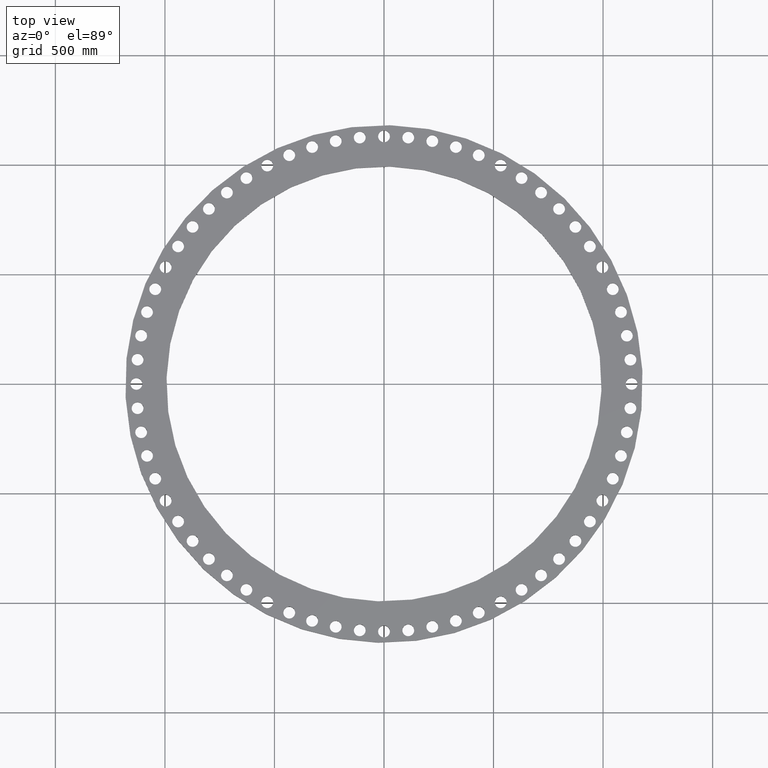
[diagram: clean part render]
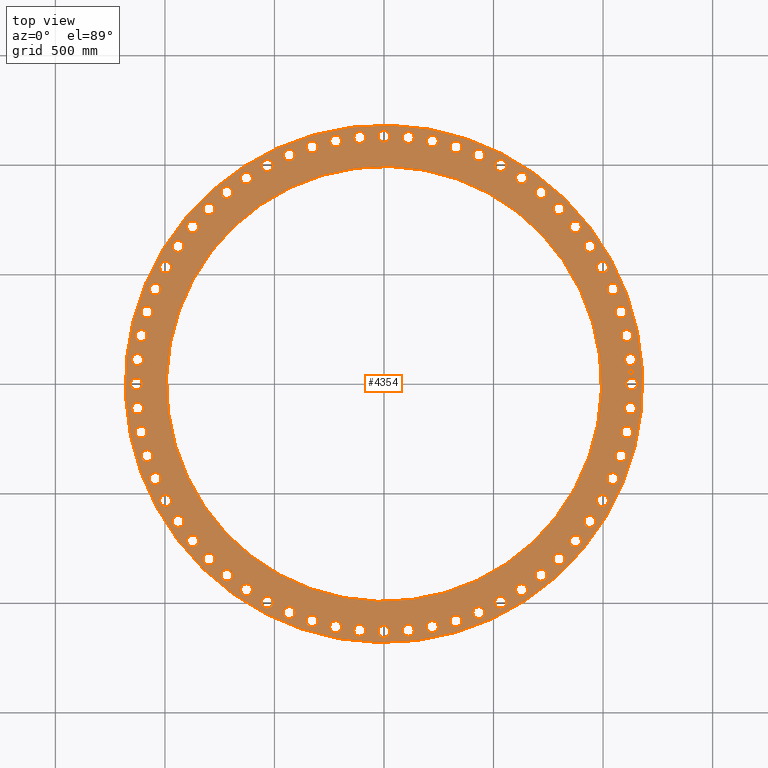
[diagram: same view with one face highlighted and labeled with its STEP entity id]
A machine part, top view. The second image highlights one B-rep face of the part: STEP entity #4354.
In plain terms, the highlighted planar face has unit normal (0, 0, 1).
Its self-contained STEP definition (entity closure, byte-faithful):
#65=AXIS2_PLACEMENT_3D('Circle Axis2P3D',#63,#64,$) ;
#82=AXIS2_PLACEMENT_3D('Circle Axis2P3D',#80,#81,$) ;
#108=AXIS2_PLACEMENT_3D('Circle Axis2P3D',#106,#107,$) ;
#134=AXIS2_PLACEMENT_3D('Circle Axis2P3D',#132,#133,$) ;
#179=AXIS2_PLACEMENT_3D('Circle Axis2P3D',#177,#178,$) ;
#196=AXIS2_PLACEMENT_3D('Circle Axis2P3D',#194,#195,$) ;
#1379=AXIS2_PLACEMENT_3D('Circle Axis2P3D',#1377,#1378,$) ;
#1391=AXIS2_PLACEMENT_3D('Circle Axis2P3D',#1389,#1390,$) ;
#1422=AXIS2_PLACEMENT_3D('Circle Axis2P3D',#1420,#1421,$) ;
#1434=AXIS2_PLACEMENT_3D('Circle Axis2P3D',#1432,#1433,$) ;
#1465=AXIS2_PLACEMENT_3D('Circle Axis2P3D',#1463,#1464,$) ;
#1477=AXIS2_PLACEMENT_3D('Circle Axis2P3D',#1475,#1476,$) ;
#1508=AXIS2_PLACEMENT_3D('Circle Axis2P3D',#1506,#1507,$) ;
#1520=AXIS2_PLACEMENT_3D('Circle Axis2P3D',#1518,#1519,$) ;
#1551=AXIS2_PLACEMENT_3D('Circle Axis2P3D',#1549,#1550,$) ;
#1563=AXIS2_PLACEMENT_3D('Circle Axis2P3D',#1561,#1562,$) ;
#1594=AXIS2_PLACEMENT_3D('Circle Axis2P3D',#1592,#1593,$) ;
#1606=AXIS2_PLACEMENT_3D('Circle Axis2P3D',#1604,#1605,$) ;
#1637=AXIS2_PLACEMENT_3D('Circle Axis2P3D',#1635,#1636,$) ;
#1649=AXIS2_PLACEMENT_3D('Circle Axis2P3D',#1647,#1648,$) ;
#1680=AXIS2_PLACEMENT_3D('Circle Axis2P3D',#1678,#1679,$) ;
#1692=AXIS2_PLACEMENT_3D('Circle Axis2P3D',#1690,#1691,$) ;
#1723=AXIS2_PLACEMENT_3D('Circle Axis2P3D',#1721,#1722,$) ;
#1735=AXIS2_PLACEMENT_3D('Circle Axis2P3D',#1733,#1734,$) ;
#1766=AXIS2_PLACEMENT_3D('Circle Axis2P3D',#1764,#1765,$) ;
#1778=AXIS2_PLACEMENT_3D('Circle Axis2P3D',#1776,#1777,$) ;
#1809=AXIS2_PLACEMENT_3D('Circle Axis2P3D',#1807,#1808,$) ;
#1821=AXIS2_PLACEMENT_3D('Circle Axis2P3D',#1819,#1820,$) ;
#1852=AXIS2_PLACEMENT_3D('Circle Axis2P3D',#1850,#1851,$) ;
#1864=AXIS2_PLACEMENT_3D('Circle Axis2P3D',#1862,#1863,$) ;
#1895=AXIS2_PLACEMENT_3D('Circle Axis2P3D',#1893,#1894,$) ;
#1907=AXIS2_PLACEMENT_3D('Circle Axis2P3D',#1905,#1906,$) ;
#1938=AXIS2_PLACEMENT_3D('Circle Axis2P3D',#1936,#1937,$) ;
#1950=AXIS2_PLACEMENT_3D('Circle Axis2P3D',#1948,#1949,$) ;
#1981=AXIS2_PLACEMENT_3D('Circle Axis2P3D',#1979,#1980,$) ;
#1993=AXIS2_PLACEMENT_3D('Circle Axis2P3D',#1991,#1992,$) ;
#2024=AXIS2_PLACEMENT_3D('Circle Axis2P3D',#2022,#2023,$) ;
#2036=AXIS2_PLACEMENT_3D('Circle Axis2P3D',#2034,#2035,$) ;
#2067=AXIS2_PLACEMENT_3D('Circle Axis2P3D',#2065,#2066,$) ;
#2079=AXIS2_PLACEMENT_3D('Circle Axis2P3D',#2077,#2078,$) ;
#2110=AXIS2_PLACEMENT_3D('Circle Axis2P3D',#2108,#2109,$) ;
#2122=AXIS2_PLACEMENT_3D('Circle Axis2P3D',#2120,#2121,$) ;
#2153=AXIS2_PLACEMENT_3D('Circle Axis2P3D',#2151,#2152,$) ;
#2165=AXIS2_PLACEMENT_3D('Circle Axis2P3D',#2163,#2164,$) ;
#2196=AXIS2_PLACEMENT_3D('Circle Axis2P3D',#2194,#2195,$) ;
#2208=AXIS2_PLACEMENT_3D('Circle Axis2P3D',#2206,#2207,$) ;
#2239=AXIS2_PLACEMENT_3D('Circle Axis2P3D',#2237,#2238,$) ;
#2251=AXIS2_PLACEMENT_3D('Circle Axis2P3D',#2249,#2250,$) ;
#2282=AXIS2_PLACEMENT_3D('Circle Axis2P3D',#2280,#2281,$) ;
#2294=AXIS2_PLACEMENT_3D('Circle Axis2P3D',#2292,#2293,$) ;
#2325=AXIS2_PLACEMENT_3D('Circle Axis2P3D',#2323,#2324,$) ;
#2337=AXIS2_PLACEMENT_3D('Circle Axis2P3D',#2335,#2336,$) ;
#2368=AXIS2_PLACEMENT_3D('Circle Axis2P3D',#2366,#2367,$) ;
#2380=AXIS2_PLACEMENT_3D('Circle Axis2P3D',#2378,#2379,$) ;
#2411=AXIS2_PLACEMENT_3D('Circle Axis2P3D',#2409,#2410,$) ;
#2423=AXIS2_PLACEMENT_3D('Circle Axis2P3D',#2421,#2422,$) ;
#2454=AXIS2_PLACEMENT_3D('Circle Axis2P3D',#2452,#2453,$) ;
#2466=AXIS2_PLACEMENT_3D('Circle Axis2P3D',#2464,#2465,$) ;
#2497=AXIS2_PLACEMENT_3D('Circle Axis2P3D',#2495,#2496,$) ;
#2509=AXIS2_PLACEMENT_3D('Circle Axis2P3D',#2507,#2508,$) ;
#2540=AXIS2_PLACEMENT_3D('Circle Axis2P3D',#2538,#2539,$) ;
#2552=AXIS2_PLACEMENT_3D('Circle Axis2P3D',#2550,#2551,$) ;
#2583=AXIS2_PLACEMENT_3D('Circle Axis2P3D',#2581,#2582,$) ;
#2595=AXIS2_PLACEMENT_3D('Circle Axis2P3D',#2593,#2594,$) ;
#2626=AXIS2_PLACEMENT_3D('Circle Axis2P3D',#2624,#2625,$) ;
#2638=AXIS2_PLACEMENT_3D('Circle Axis2P3D',#2636,#2637,$) ;
#2669=AXIS2_PLACEMENT_3D('Circle Axis2P3D',#2667,#2668,$) ;
#2681=AXIS2_PLACEMENT_3D('Circle Axis2P3D',#2679,#2680,$) ;
#2712=AXIS2_PLACEMENT_3D('Circle Axis2P3D',#2710,#2711,$) ;
#2724=AXIS2_PLACEMENT_3D('Circle Axis2P3D',#2722,#2723,$) ;
#2755=AXIS2_PLACEMENT_3D('Circle Axis2P3D',#2753,#2754,$) ;
#2767=AXIS2_PLACEMENT_3D('Circle Axis2P3D',#2765,#2766,$) ;
#2798=AXIS2_PLACEMENT_3D('Circle Axis2P3D',#2796,#2797,$) ;
#2810=AXIS2_PLACEMENT_3D('Circle Axis2P3D',#2808,#2809,$) ;
#2841=AXIS2_PLACEMENT_3D('Circle Axis2P3D',#2839,#2840,$) ;
#2853=AXIS2_PLACEMENT_3D('Circle Axis2P3D',#2851,#2852,$) ;
#2884=AXIS2_PLACEMENT_3D('Circle Axis2P3D',#2882,#2883,$) ;
#2896=AXIS2_PLACEMENT_3D('Circle Axis2P3D',#2894,#2895,$) ;
#2927=AXIS2_PLACEMENT_3D('Circle Axis2P3D',#2925,#2926,$) ;
#2939=AXIS2_PLACEMENT_3D('Circle Axis2P3D',#2937,#2938,$) ;
#2970=AXIS2_PLACEMENT_3D('Circle Axis2P3D',#2968,#2969,$) ;
#2982=AXIS2_PLACEMENT_3D('Circle Axis2P3D',#2980,#2981,$) ;
#3013=AXIS2_PLACEMENT_3D('Circle Axis2P3D',#3011,#3012,$) ;
#3025=AXIS2_PLACEMENT_3D('Circle Axis2P3D',#3023,#3024,$) ;
#3056=AXIS2_PLACEMENT_3D('Circle Axis2P3D',#3054,#3055,$) ;
#3068=AXIS2_PLACEMENT_3D('Circle Axis2P3D',#3066,#3067,$) ;
#3099=AXIS2_PLACEMENT_3D('Circle Axis2P3D',#3097,#3098,$) ;
#3111=AXIS2_PLACEMENT_3D('Circle Axis2P3D',#3109,#3110,$) ;
#3142=AXIS2_PLACEMENT_3D('Circle Axis2P3D',#3140,#3141,$) ;
#3154=AXIS2_PLACEMENT_3D('Circle Axis2P3D',#3152,#3153,$) ;
#3185=AXIS2_PLACEMENT_3D('Circle Axis2P3D',#3183,#3184,$) ;
#3197=AXIS2_PLACEMENT_3D('Circle Axis2P3D',#3195,#3196,$) ;
#3228=AXIS2_PLACEMENT_3D('Circle Axis2P3D',#3226,#3227,$) ;
#3240=AXIS2_PLACEMENT_3D('Circle Axis2P3D',#3238,#3239,$) ;
#3271=AXIS2_PLACEMENT_3D('Circle Axis2P3D',#3269,#3270,$) ;
#3283=AXIS2_PLACEMENT_3D('Circle Axis2P3D',#3281,#3282,$) ;
#3314=AXIS2_PLACEMENT_3D('Circle Axis2P3D',#3312,#3313,$) ;
#3326=AXIS2_PLACEMENT_3D('Circle Axis2P3D',#3324,#3325,$) ;
#3357=AXIS2_PLACEMENT_3D('Circle Axis2P3D',#3355,#3356,$) ;
#3369=AXIS2_PLACEMENT_3D('Circle Axis2P3D',#3367,#3368,$) ;
#3400=AXIS2_PLACEMENT_3D('Circle Axis2P3D',#3398,#3399,$) ;
#3412=AXIS2_PLACEMENT_3D('Circle Axis2P3D',#3410,#3411,$) ;
#3443=AXIS2_PLACEMENT_3D('Circle Axis2P3D',#3441,#3442,$) ;
#3455=AXIS2_PLACEMENT_3D('Circle Axis2P3D',#3453,#3454,$) ;
#3486=AXIS2_PLACEMENT_3D('Circle Axis2P3D',#3484,#3485,$) ;
#3498=AXIS2_PLACEMENT_3D('Circle Axis2P3D',#3496,#3497,$) ;
#3529=AXIS2_PLACEMENT_3D('Circle Axis2P3D',#3527,#3528,$) ;
#3541=AXIS2_PLACEMENT_3D('Circle Axis2P3D',#3539,#3540,$) ;
#3572=AXIS2_PLACEMENT_3D('Circle Axis2P3D',#3570,#3571,$) ;
#3584=AXIS2_PLACEMENT_3D('Circle Axis2P3D',#3582,#3583,$) ;
#3615=AXIS2_PLACEMENT_3D('Circle Axis2P3D',#3613,#3614,$) ;
#3627=AXIS2_PLACEMENT_3D('Circle Axis2P3D',#3625,#3626,$) ;
#3658=AXIS2_PLACEMENT_3D('Circle Axis2P3D',#3656,#3657,$) ;
#3670=AXIS2_PLACEMENT_3D('Circle Axis2P3D',#3668,#3669,$) ;
#3701=AXIS2_PLACEMENT_3D('Circle Axis2P3D',#3699,#3700,$) ;
#3713=AXIS2_PLACEMENT_3D('Circle Axis2P3D',#3711,#3712,$) ;
#3744=AXIS2_PLACEMENT_3D('Circle Axis2P3D',#3742,#3743,$) ;
#3756=AXIS2_PLACEMENT_3D('Circle Axis2P3D',#3754,#3755,$) ;
#3787=AXIS2_PLACEMENT_3D('Circle Axis2P3D',#3785,#3786,$) ;
#3799=AXIS2_PLACEMENT_3D('Circle Axis2P3D',#3797,#3798,$) ;
#3830=AXIS2_PLACEMENT_3D('Circle Axis2P3D',#3828,#3829,$) ;
#3842=AXIS2_PLACEMENT_3D('Circle Axis2P3D',#3840,#3841,$) ;
#3873=AXIS2_PLACEMENT_3D('Circle Axis2P3D',#3871,#3872,$) ;
#3885=AXIS2_PLACEMENT_3D('Circle Axis2P3D',#3883,#3884,$) ;
#3916=AXIS2_PLACEMENT_3D('Circle Axis2P3D',#3914,#3915,$) ;
#3928=AXIS2_PLACEMENT_3D('Circle Axis2P3D',#3926,#3927,$) ;
#3959=AXIS2_PLACEMENT_3D('Circle Axis2P3D',#3957,#3958,$) ;
#3971=AXIS2_PLACEMENT_3D('Circle Axis2P3D',#3969,#3970,$) ;
#4002=AXIS2_PLACEMENT_3D('Circle Axis2P3D',#4000,#4001,$) ;
#4014=AXIS2_PLACEMENT_3D('Circle Axis2P3D',#4012,#4013,$) ;
#4045=AXIS2_PLACEMENT_3D('Circle Axis2P3D',#4043,#4044,$) ;
#4057=AXIS2_PLACEMENT_3D('Circle Axis2P3D',#4055,#4056,$) ;
#4070=AXIS2_PLACEMENT_3D('Plane Axis2P3D',#4067,#4068,#4069) ;
#4338=AXIS2_PLACEMENT_3D('Circle Axis2P3D',#4336,#4337,$) ;
#4347=AXIS2_PLACEMENT_3D('Circle Axis2P3D',#4345,#4346,$) ;
#46=CARTESIAN_POINT('Vertex',(43.5675685282,0.509389634769,2.75000000001)) ;
#60=CARTESIAN_POINT('Vertex',(45.4324314722,-0.509389634769,2.75000000001)) ;
#63=CARTESIAN_POINT('Axis2P3D Location',(44.5000000002,0.,2.75000000001)) ;
#80=CARTESIAN_POINT('Axis2P3D Location',(44.5000000002,0.,2.75000000001)) ;
#103=CARTESIAN_POINT('Vertex',(40.8075891281,22.2932875452,2.75000000001)) ;
#106=CARTESIAN_POINT('Axis2P3D Location',(0.,0.,2.75000000001)) ;
#110=CARTESIAN_POINT('Vertex',(-40.8075891281,-22.2932875452,2.75000000001)) ;
#132=CARTESIAN_POINT('Axis2P3D Location',(0.,0.,2.75000000001)) ;
#160=CARTESIAN_POINT('Vertex',(-34.3090902572,18.7431414318,2.75000000001)) ;
#174=CARTESIAN_POINT('Vertex',(34.3090902572,-18.7431414318,2.75000000001)) ;
#177=CARTESIAN_POINT('Axis2P3D Location',(-6.64385432059E-016,-2.09805925913E-016,2.75000000001)) ;
#194=CARTESIAN_POINT('Axis2P3D Location',(-6.64385432059E-016,-2.09805925913E-016,2.75000000001)) ;
#1367=CARTESIAN_POINT('Vertex',(43.3078498622,4.77730526269,2.75000000001)) ;
#1374=CARTESIAN_POINT('Vertex',(45.263590812,3.94622022668,2.75000000001)) ;
#1377=CARTESIAN_POINT('Axis2P3D Location',(44.2857203371,4.36176274468,2.75000000001)) ;
#1389=CARTESIAN_POINT('Axis2P3D Location',(44.2857203371,4.36176274468,2.75000000001)) ;
#1410=CARTESIAN_POINT('Vertex',(42.6310529275,8.99921282939,2.75000000001)) ;
#1417=CARTESIAN_POINT('Vertex',(44.6588370287,8.36382583011,2.75000000001)) ;
#1420=CARTESIAN_POINT('Axis2P3D Location',(43.6449449781,8.68151932975,2.75000000001)) ;
#1432=CARTESIAN_POINT('Axis2P3D Location',(43.6449449781,8.68151932975,2.75000000001)) ;
#1453=CARTESIAN_POINT('Vertex',(41.5436956487,13.1344530571,2.75000000001)) ;
#1460=CARTESIAN_POINT('Vertex',(43.6239942319,12.7008832187,2.75000000001)) ;
#1463=CARTESIAN_POINT('Axis2P3D Location',(42.5838449403,12.9176681379,2.75000000001)) ;
#1475=CARTESIAN_POINT('Axis2P3D Location',(42.5838449403,12.9176681379,2.75000000001)) ;
#1496=CARTESIAN_POINT('Vertex',(40.0562498706,17.1432013218,2.75000000001)) ;
#1503=CARTESIAN_POINT('Vertex',(42.1690285232,16.9156241588,2.75000000001)) ;
#1506=CARTESIAN_POINT('Axis2P3D Location',(41.1126391969,17.0294127403,2.75000000001)) ;
#1518=CARTESIAN_POINT('Axis2P3D Location',(41.1126391969,17.0294127403,2.75000000001)) ;
#1539=CARTESIAN_POINT('Vertex',(38.1830405093,20.9868511864,2.75000000001)) ;
#1546=CARTESIAN_POINT('Vertex',(40.307952018,20.9674583913,2.75000000001)) ;
#1549=CARTESIAN_POINT('Axis2P3D Location',(39.2454962637,20.9771547888,2.75000000001)) ;
#1561=CARTESIAN_POINT('Axis2P3D Location',(39.2454962637,20.9771547888,2.75000000001)) ;
#1582=CARTESIAN_POINT('Vertex',(35.942107595,24.6283862014,2.75000000001)) ;
#1589=CARTESIAN_POINT('Vertex',(38.0586879002,24.8173645375,2.75000000001)) ;
#1592=CARTESIAN_POINT('Axis2P3D Location',(37.0003977476,24.7228753695,2.75000000001)) ;
#1604=CARTESIAN_POINT('Axis2P3D Location',(37.0003977476,24.7228753695,2.75000000001)) ;
#1625=CARTESIAN_POINT('Vertex',(33.3550325365,28.0327363941,2.75000000001)) ;
#1632=CARTESIAN_POINT('Vertex',(35.442897813,28.4282658967,2.75000000001)) ;
#1635=CARTESIAN_POINT('Axis2P3D Location',(34.3989651748,28.2305011454,2.75000000001)) ;
#1647=CARTESIAN_POINT('Axis2P3D Location',(34.3989651748,28.2305011454,2.75000000001)) ;
#1668=CARTESIAN_POINT('Vertex',(30.4467302811,31.1671160111,2.75000000001)) ;
#1675=CARTESIAN_POINT('Vertex',(32.4857732448,31.7653875148,2.75000000001)) ;
#1678=CARTESIAN_POINT('Axis2P3D Location',(31.4662517629,31.4662517629,2.75000000001)) ;
#1690=CARTESIAN_POINT('Axis2P3D Location',(31.4662517629,31.4662517629,2.75000000001)) ;
#1711=CARTESIAN_POINT('Vertex',(27.2452093691,34.0013392632,2.75000000001)) ;
#1718=CARTESIAN_POINT('Vertex',(29.2157929217,34.7965910864,2.75000000001)) ;
#1721=CARTESIAN_POINT('Axis2P3D Location',(28.2305011454,34.3989651748,2.75000000001)) ;
#1733=CARTESIAN_POINT('Axis2P3D Location',(28.2305011454,34.3989651748,2.75000000001)) ;
#1754=CARTESIAN_POINT('Vertex',(23.7813021972,36.5081110312,2.75000000001)) ;
#1761=CARTESIAN_POINT('Vertex',(25.6644485418,37.4926844641,2.75000000001)) ;
#1764=CARTESIAN_POINT('Axis2P3D Location',(24.7228753695,37.0003977476,2.75000000001)) ;
#1776=CARTESIAN_POINT('Axis2P3D Location',(24.7228753695,37.0003977476,2.75000000001)) ;
#1797=CARTESIAN_POINT('Vertex',(20.0883680849,38.6632897325,2.75000000001)) ;
#1804=CARTESIAN_POINT('Vertex',(21.8659414928,39.8277027948,2.75000000001)) ;
#1807=CARTESIAN_POINT('Axis2P3D Location',(20.9771547888,39.2454962637,2.75000000001)) ;
#1819=CARTESIAN_POINT('Axis2P3D Location',(20.9771547888,39.2454962637,2.75000000001)) ;
#1840=CARTESIAN_POINT('Vertex',(16.2019720065,40.4461198183,2.75000000001)) ;
#1847=CARTESIAN_POINT('Vertex',(17.8568534741,41.7791585755,2.75000000001)) ;
#1850=CARTESIAN_POINT('Axis2P3D Location',(17.0294127403,41.1126391969,2.75000000001)) ;
#1862=CARTESIAN_POINT('Axis2P3D Location',(17.0294127403,41.1126391969,2.75000000001)) ;
#1883=CARTESIAN_POINT('Vertex',(12.1595420808,41.8394316601,2.75000000001)) ;
#1890=CARTESIAN_POINT('Vertex',(13.6757941949,43.3282582204,2.75000000001)) ;
#1893=CARTESIAN_POINT('Axis2P3D Location',(12.9176681379,42.5838449403,2.75000000001)) ;
#1905=CARTESIAN_POINT('Axis2P3D Location',(12.9176681379,42.5838449403,2.75000000001)) ;
#1926=CARTESIAN_POINT('Vertex',(8.00000911785,42.8298069033,2.75000000001)) ;
#1933=CARTESIAN_POINT('Vertex',(9.36302954166,44.460083053,2.75000000001)) ;
#1936=CARTESIAN_POINT('Axis2P3D Location',(8.68151932975,43.6449449781,2.75000000001)) ;
#1948=CARTESIAN_POINT('Axis2P3D Location',(8.68151932975,43.6449449781,2.75000000001)) ;
#1969=CARTESIAN_POINT('Vertex',(3.7634316938,43.4077076928,2.75000000001)) ;
#1976=CARTESIAN_POINT('Vertex',(4.96009379557,45.1637329814,2.75000000001)) ;
#1979=CARTESIAN_POINT('Axis2P3D Location',(4.36176274468,44.2857203371,2.75000000001)) ;
#1991=CARTESIAN_POINT('Axis2P3D Location',(4.36176274468,44.2857203371,2.75000000001)) ;
#2012=CARTESIAN_POINT('Vertex',(-0.509389634769,43.5675685282,2.75000000001)) ;
#2019=CARTESIAN_POINT('Vertex',(0.509389634769,45.4324314722,2.75000000001)) ;
#2022=CARTESIAN_POINT('Axis2P3D Location',(-6.22688037753E-015,44.5000000002,2.75000000001)) ;
#2034=CARTESIAN_POINT('Axis2P3D Location',(-6.22688037753E-015,44.5000000002,2.75000000001)) ;
#2055=CARTESIAN_POINT('Vertex',(-4.77730526269,43.3078498622,2.75000000001)) ;
#2062=CARTESIAN_POINT('Vertex',(-3.94622022668,45.263590812,2.75000000001)) ;
#2065=CARTESIAN_POINT('Axis2P3D Location',(-4.36176274468,44.2857203371,2.75000000001)) ;
#2077=CARTESIAN_POINT('Axis2P3D Location',(-4.36176274468,44.2857203371,2.75000000001)) ;
#2098=CARTESIAN_POINT('Vertex',(-8.99921282939,42.6310529275,2.75000000001)) ;
#2105=CARTESIAN_POINT('Vertex',(-8.36382583011,44.6588370287,2.75000000001)) ;
#2108=CARTESIAN_POINT('Axis2P3D Location',(-8.68151932975,43.6449449781,2.75000000001)) ;
#2120=CARTESIAN_POINT('Axis2P3D Location',(-8.68151932975,43.6449449781,2.75000000001)) ;
#2141=CARTESIAN_POINT('Vertex',(-13.1344530571,41.5436956487,2.75000000001)) ;
#2148=CARTESIAN_POINT('Vertex',(-12.7008832187,43.6239942319,2.75000000001)) ;
#2151=CARTESIAN_POINT('Axis2P3D Location',(-12.9176681379,42.5838449403,2.75000000001)) ;
#2163=CARTESIAN_POINT('Axis2P3D Location',(-12.9176681379,42.5838449403,2.75000000001)) ;
#2184=CARTESIAN_POINT('Vertex',(-17.1432013218,40.0562498706,2.75000000001)) ;
#2191=CARTESIAN_POINT('Vertex',(-16.9156241588,42.1690285232,2.75000000001)) ;
#2194=CARTESIAN_POINT('Axis2P3D Location',(-17.0294127403,41.1126391969,2.75000000001)) ;
#2206=CARTESIAN_POINT('Axis2P3D Location',(-17.0294127403,41.1126391969,2.75000000001)) ;
#2227=CARTESIAN_POINT('Vertex',(-20.9868511864,38.1830405093,2.75000000001)) ;
#2234=CARTESIAN_POINT('Vertex',(-20.9674583913,40.307952018,2.75000000001)) ;
#2237=CARTESIAN_POINT('Axis2P3D Location',(-20.9771547888,39.2454962637,2.75000000001)) ;
#2249=CARTESIAN_POINT('Axis2P3D Location',(-20.9771547888,39.2454962637,2.75000000001)) ;
#2270=CARTESIAN_POINT('Vertex',(-24.6283862014,35.942107595,2.75000000001)) ;
#2277=CARTESIAN_POINT('Vertex',(-24.8173645375,38.0586879002,2.75000000001)) ;
#2280=CARTESIAN_POINT('Axis2P3D Location',(-24.7228753695,37.0003977476,2.75000000001)) ;
#2292=CARTESIAN_POINT('Axis2P3D Location',(-24.7228753695,37.0003977476,2.75000000001)) ;
#2313=CARTESIAN_POINT('Vertex',(-28.0327363941,33.3550325365,2.75000000001)) ;
#2320=CARTESIAN_POINT('Vertex',(-28.4282658967,35.442897813,2.75000000001)) ;
#2323=CARTESIAN_POINT('Axis2P3D Location',(-28.2305011454,34.3989651748,2.75000000001)) ;
#2335=CARTESIAN_POINT('Axis2P3D Location',(-28.2305011454,34.3989651748,2.75000000001)) ;
#2356=CARTESIAN_POINT('Vertex',(-31.1671160111,30.4467302811,2.75000000001)) ;
#2363=CARTESIAN_POINT('Vertex',(-31.7653875148,32.4857732448,2.75000000001)) ;
#2366=CARTESIAN_POINT('Axis2P3D Location',(-31.4662517629,31.4662517629,2.75000000001)) ;
#2378=CARTESIAN_POINT('Axis2P3D Location',(-31.4662517629,31.4662517629,2.75000000001)) ;
#2399=CARTESIAN_POINT('Vertex',(-34.0013392632,27.2452093691,2.75000000001)) ;
#2406=CARTESIAN_POINT('Vertex',(-34.7965910864,29.2157929217,2.75000000001)) ;
#2409=CARTESIAN_POINT('Axis2P3D Location',(-34.3989651748,28.2305011454,2.75000000001)) ;
#2421=CARTESIAN_POINT('Axis2P3D Location',(-34.3989651748,28.2305011454,2.75000000001)) ;
#2442=CARTESIAN_POINT('Vertex',(-36.5081110312,23.7813021972,2.75000000001)) ;
#2449=CARTESIAN_POINT('Vertex',(-37.4926844641,25.6644485418,2.75000000001)) ;
#2452=CARTESIAN_POINT('Axis2P3D Location',(-37.0003977476,24.7228753695,2.75000000001)) ;
#2464=CARTESIAN_POINT('Axis2P3D Location',(-37.0003977476,24.7228753695,2.75000000001)) ;
#2485=CARTESIAN_POINT('Vertex',(-38.6632897325,20.0883680849,2.75000000001)) ;
#2492=CARTESIAN_POINT('Vertex',(-39.8277027948,21.8659414928,2.75000000001)) ;
#2495=CARTESIAN_POINT('Axis2P3D Location',(-39.2454962637,20.9771547888,2.75000000001)) ;
#2507=CARTESIAN_POINT('Axis2P3D Location',(-39.2454962637,20.9771547888,2.75000000001)) ;
#2528=CARTESIAN_POINT('Vertex',(-40.4461198183,16.2019720065,2.75000000001)) ;
#2535=CARTESIAN_POINT('Vertex',(-41.7791585755,17.8568534741,2.75000000001)) ;
#2538=CARTESIAN_POINT('Axis2P3D Location',(-41.1126391969,17.0294127403,2.75000000001)) ;
#2550=CARTESIAN_POINT('Axis2P3D Location',(-41.1126391969,17.0294127403,2.75000000001)) ;
#2571=CARTESIAN_POINT('Vertex',(-41.8394316601,12.1595420808,2.75000000001)) ;
#2578=CARTESIAN_POINT('Vertex',(-43.3282582204,13.6757941949,2.75000000001)) ;
#2581=CARTESIAN_POINT('Axis2P3D Location',(-42.5838449403,12.9176681379,2.75000000001)) ;
#2593=CARTESIAN_POINT('Axis2P3D Location',(-42.5838449403,12.9176681379,2.75000000001)) ;
#2614=CARTESIAN_POINT('Vertex',(-42.8298069033,8.00000911785,2.75000000001)) ;
#2621=CARTESIAN_POINT('Vertex',(-44.460083053,9.36302954166,2.75000000001)) ;
#2624=CARTESIAN_POINT('Axis2P3D Location',(-43.6449449781,8.68151932975,2.75000000001)) ;
#2636=CARTESIAN_POINT('Axis2P3D Location',(-43.6449449781,8.68151932975,2.75000000001)) ;
#2657=CARTESIAN_POINT('Vertex',(-43.4077076928,3.7634316938,2.75000000001)) ;
#2664=CARTESIAN_POINT('Vertex',(-45.1637329814,4.96009379557,2.75000000001)) ;
#2667=CARTESIAN_POINT('Axis2P3D Location',(-44.2857203371,4.36176274468,2.75000000001)) ;
#2679=CARTESIAN_POINT('Axis2P3D Location',(-44.2857203371,4.36176274468,2.75000000001)) ;
#2700=CARTESIAN_POINT('Vertex',(-43.5675685282,-0.509389634769,2.75000000001)) ;
#2707=CARTESIAN_POINT('Vertex',(-45.4324314722,0.509389634769,2.75000000001)) ;
#2710=CARTESIAN_POINT('Axis2P3D Location',(-44.5000000002,5.44967825623E-015,2.75000000001)) ;
#2722=CARTESIAN_POINT('Axis2P3D Location',(-44.5000000002,5.44967825623E-015,2.75000000001)) ;
#2743=CARTESIAN_POINT('Vertex',(-43.3078498622,-4.77730526269,2.75000000001)) ;
#2750=CARTESIAN_POINT('Vertex',(-45.263590812,-3.94622022668,2.75000000001)) ;
#2753=CARTESIAN_POINT('Axis2P3D Location',(-44.2857203371,-4.36176274468,2.75000000001)) ;
#2765=CARTESIAN_POINT('Axis2P3D Location',(-44.2857203371,-4.36176274468,2.75000000001)) ;
#2786=CARTESIAN_POINT('Vertex',(-42.6310529275,-8.99921282939,2.75000000001)) ;
#2793=CARTESIAN_POINT('Vertex',(-44.6588370287,-8.36382583011,2.75000000001)) ;
#2796=CARTESIAN_POINT('Axis2P3D Location',(-43.6449449781,-8.68151932975,2.75000000001)) ;
#2808=CARTESIAN_POINT('Axis2P3D Location',(-43.6449449781,-8.68151932975,2.75000000001)) ;
#2829=CARTESIAN_POINT('Vertex',(-41.5436956487,-13.1344530571,2.75000000001)) ;
#2836=CARTESIAN_POINT('Vertex',(-43.6239942319,-12.7008832187,2.75000000001)) ;
#2839=CARTESIAN_POINT('Axis2P3D Location',(-42.5838449403,-12.9176681379,2.75000000001)) ;
#2851=CARTESIAN_POINT('Axis2P3D Location',(-42.5838449403,-12.9176681379,2.75000000001)) ;
#2872=CARTESIAN_POINT('Vertex',(-40.0562498706,-17.1432013218,2.75000000001)) ;
#2879=CARTESIAN_POINT('Vertex',(-42.1690285232,-16.9156241588,2.75000000001)) ;
#2882=CARTESIAN_POINT('Axis2P3D Location',(-41.1126391969,-17.0294127403,2.75000000001)) ;
#2894=CARTESIAN_POINT('Axis2P3D Location',(-41.1126391969,-17.0294127403,2.75000000001)) ;
#2915=CARTESIAN_POINT('Vertex',(-38.1830405093,-20.9868511864,2.75000000001)) ;
#2922=CARTESIAN_POINT('Vertex',(-40.307952018,-20.9674583913,2.75000000001)) ;
#2925=CARTESIAN_POINT('Axis2P3D Location',(-39.2454962637,-20.9771547888,2.75000000001)) ;
#2937=CARTESIAN_POINT('Axis2P3D Location',(-39.2454962637,-20.9771547888,2.75000000001)) ;
#2958=CARTESIAN_POINT('Vertex',(-35.942107595,-24.6283862014,2.75000000001)) ;
#2965=CARTESIAN_POINT('Vertex',(-38.0586879002,-24.8173645375,2.75000000001)) ;
#2968=CARTESIAN_POINT('Axis2P3D Location',(-37.0003977476,-24.7228753695,2.75000000001)) ;
#2980=CARTESIAN_POINT('Axis2P3D Location',(-37.0003977476,-24.7228753695,2.75000000001)) ;
#3001=CARTESIAN_POINT('Vertex',(-33.3550325365,-28.0327363941,2.75000000001)) ;
#3008=CARTESIAN_POINT('Vertex',(-35.442897813,-28.4282658967,2.75000000001)) ;
#3011=CARTESIAN_POINT('Axis2P3D Location',(-34.3989651748,-28.2305011454,2.75000000001)) ;
#3023=CARTESIAN_POINT('Axis2P3D Location',(-34.3989651748,-28.2305011454,2.75000000001)) ;
#3044=CARTESIAN_POINT('Vertex',(-30.4467302811,-31.1671160111,2.75000000001)) ;
#3051=CARTESIAN_POINT('Vertex',(-32.4857732448,-31.7653875148,2.75000000001)) ;
#3054=CARTESIAN_POINT('Axis2P3D Location',(-31.4662517629,-31.4662517629,2.75000000001)) ;
#3066=CARTESIAN_POINT('Axis2P3D Location',(-31.4662517629,-31.4662517629,2.75000000001)) ;
#3087=CARTESIAN_POINT('Vertex',(-27.2452093691,-34.0013392632,2.75000000001)) ;
#3094=CARTESIAN_POINT('Vertex',(-29.2157929217,-34.7965910864,2.75000000001)) ;
#3097=CARTESIAN_POINT('Axis2P3D Location',(-28.2305011454,-34.3989651748,2.75000000001)) ;
#3109=CARTESIAN_POINT('Axis2P3D Location',(-28.2305011454,-34.3989651748,2.75000000001)) ;
#3130=CARTESIAN_POINT('Vertex',(-23.7813021972,-36.5081110312,2.75000000001)) ;
#3137=CARTESIAN_POINT('Vertex',(-25.6644485418,-37.4926844641,2.75000000001)) ;
#3140=CARTESIAN_POINT('Axis2P3D Location',(-24.7228753695,-37.0003977476,2.75000000001)) ;
#3152=CARTESIAN_POINT('Axis2P3D Location',(-24.7228753695,-37.0003977476,2.75000000001)) ;
#3173=CARTESIAN_POINT('Vertex',(-20.0883680849,-38.6632897325,2.75000000001)) ;
#3180=CARTESIAN_POINT('Vertex',(-21.8659414928,-39.8277027948,2.75000000001)) ;
#3183=CARTESIAN_POINT('Axis2P3D Location',(-20.9771547888,-39.2454962637,2.75000000001)) ;
#3195=CARTESIAN_POINT('Axis2P3D Location',(-20.9771547888,-39.2454962637,2.75000000001)) ;
#3216=CARTESIAN_POINT('Vertex',(-16.2019720065,-40.4461198183,2.75000000001)) ;
#3223=CARTESIAN_POINT('Vertex',(-17.8568534741,-41.7791585755,2.75000000001)) ;
#3226=CARTESIAN_POINT('Axis2P3D Location',(-17.0294127403,-41.1126391969,2.75000000001)) ;
#3238=CARTESIAN_POINT('Axis2P3D Location',(-17.0294127403,-41.1126391969,2.75000000001)) ;
#3259=CARTESIAN_POINT('Vertex',(-12.1595420808,-41.8394316601,2.75000000001)) ;
#3266=CARTESIAN_POINT('Vertex',(-13.6757941949,-43.3282582204,2.75000000001)) ;
#3269=CARTESIAN_POINT('Axis2P3D Location',(-12.9176681379,-42.5838449403,2.75000000001)) ;
#3281=CARTESIAN_POINT('Axis2P3D Location',(-12.9176681379,-42.5838449403,2.75000000001)) ;
#3302=CARTESIAN_POINT('Vertex',(-8.00000911785,-42.8298069033,2.75000000001)) ;
#3309=CARTESIAN_POINT('Vertex',(-9.36302954166,-44.460083053,2.75000000001)) ;
#3312=CARTESIAN_POINT('Axis2P3D Location',(-8.68151932975,-43.6449449781,2.75000000001)) ;
#3324=CARTESIAN_POINT('Axis2P3D Location',(-8.68151932975,-43.6449449781,2.75000000001)) ;
#3345=CARTESIAN_POINT('Vertex',(-3.7634316938,-43.4077076928,2.75000000001)) ;
#3352=CARTESIAN_POINT('Vertex',(-4.96009379557,-45.1637329814,2.75000000001)) ;
#3355=CARTESIAN_POINT('Axis2P3D Location',(-4.36176274468,-44.2857203371,2.75000000001)) ;
#3367=CARTESIAN_POINT('Axis2P3D Location',(-4.36176274468,-44.2857203371,2.75000000001)) ;
#3388=CARTESIAN_POINT('Vertex',(0.509389634769,-43.5675685282,2.75000000001)) ;
#3395=CARTESIAN_POINT('Vertex',(-0.509389634769,-45.4324314722,2.75000000001)) ;
#3398=CARTESIAN_POINT('Axis2P3D Location',(-8.17451738434E-015,-44.5000000002,2.75000000001)) ;
#3410=CARTESIAN_POINT('Axis2P3D Location',(-8.17451738434E-015,-44.5000000002,2.75000000001)) ;
#3431=CARTESIAN_POINT('Vertex',(4.77730526269,-43.3078498622,2.75000000001)) ;
#3438=CARTESIAN_POINT('Vertex',(3.94622022668,-45.263590812,2.75000000001)) ;
#3441=CARTESIAN_POINT('Axis2P3D Location',(4.36176274468,-44.2857203371,2.75000000001)) ;
#3453=CARTESIAN_POINT('Axis2P3D Location',(4.36176274468,-44.2857203371,2.75000000001)) ;
#3474=CARTESIAN_POINT('Vertex',(8.99921282939,-42.6310529275,2.75000000001)) ;
#3481=CARTESIAN_POINT('Vertex',(8.36382583011,-44.6588370287,2.75000000001)) ;
#3484=CARTESIAN_POINT('Axis2P3D Location',(8.68151932975,-43.6449449781,2.75000000001)) ;
#3496=CARTESIAN_POINT('Axis2P3D Location',(8.68151932975,-43.6449449781,2.75000000001)) ;
#3517=CARTESIAN_POINT('Vertex',(13.1344530571,-41.5436956487,2.75000000001)) ;
#3524=CARTESIAN_POINT('Vertex',(12.7008832187,-43.6239942319,2.75000000001)) ;
#3527=CARTESIAN_POINT('Axis2P3D Location',(12.9176681379,-42.5838449403,2.75000000001)) ;
#3539=CARTESIAN_POINT('Axis2P3D Location',(12.9176681379,-42.5838449403,2.75000000001)) ;
#3560=CARTESIAN_POINT('Vertex',(17.1432013218,-40.0562498706,2.75000000001)) ;
#3567=CARTESIAN_POINT('Vertex',(16.9156241588,-42.1690285232,2.75000000001)) ;
#3570=CARTESIAN_POINT('Axis2P3D Location',(17.0294127403,-41.1126391969,2.75000000001)) ;
#3582=CARTESIAN_POINT('Axis2P3D Location',(17.0294127403,-41.1126391969,2.75000000001)) ;
#3603=CARTESIAN_POINT('Vertex',(20.9868511864,-38.1830405093,2.75000000001)) ;
#3610=CARTESIAN_POINT('Vertex',(20.9674583913,-40.307952018,2.75000000001)) ;
#3613=CARTESIAN_POINT('Axis2P3D Location',(20.9771547888,-39.2454962637,2.75000000001)) ;
#3625=CARTESIAN_POINT('Axis2P3D Location',(20.9771547888,-39.2454962637,2.75000000001)) ;
#3646=CARTESIAN_POINT('Vertex',(24.6283862014,-35.942107595,2.75000000001)) ;
#3653=CARTESIAN_POINT('Vertex',(24.8173645375,-38.0586879002,2.75000000001)) ;
#3656=CARTESIAN_POINT('Axis2P3D Location',(24.7228753695,-37.0003977476,2.75000000001)) ;
#3668=CARTESIAN_POINT('Axis2P3D Location',(24.7228753695,-37.0003977476,2.75000000001)) ;
#3689=CARTESIAN_POINT('Vertex',(28.0327363941,-33.3550325365,2.75000000001)) ;
#3696=CARTESIAN_POINT('Vertex',(28.4282658967,-35.442897813,2.75000000001)) ;
#3699=CARTESIAN_POINT('Axis2P3D Location',(28.2305011454,-34.3989651748,2.75000000001)) ;
#3711=CARTESIAN_POINT('Axis2P3D Location',(28.2305011454,-34.3989651748,2.75000000001)) ;
#3732=CARTESIAN_POINT('Vertex',(31.1671160111,-30.4467302811,2.75000000001)) ;
#3739=CARTESIAN_POINT('Vertex',(31.7653875148,-32.4857732448,2.75000000001)) ;
#3742=CARTESIAN_POINT('Axis2P3D Location',(31.4662517629,-31.4662517629,2.75000000001)) ;
#3754=CARTESIAN_POINT('Axis2P3D Location',(31.4662517629,-31.4662517629,2.75000000001)) ;
#3775=CARTESIAN_POINT('Vertex',(34.0013392632,-27.2452093691,2.75000000001)) ;
#3782=CARTESIAN_POINT('Vertex',(34.7965910864,-29.2157929217,2.75000000001)) ;
#3785=CARTESIAN_POINT('Axis2P3D Location',(34.3989651748,-28.2305011454,2.75000000001)) ;
#3797=CARTESIAN_POINT('Axis2P3D Location',(34.3989651748,-28.2305011454,2.75000000001)) ;
#3818=CARTESIAN_POINT('Vertex',(36.5081110312,-23.7813021972,2.75000000001)) ;
#3825=CARTESIAN_POINT('Vertex',(37.4926844641,-25.6644485418,2.75000000001)) ;
#3828=CARTESIAN_POINT('Axis2P3D Location',(37.0003977476,-24.7228753695,2.75000000001)) ;
#3840=CARTESIAN_POINT('Axis2P3D Location',(37.0003977476,-24.7228753695,2.75000000001)) ;
#3861=CARTESIAN_POINT('Vertex',(38.6632897325,-20.0883680849,2.75000000001)) ;
#3868=CARTESIAN_POINT('Vertex',(39.8277027948,-21.8659414928,2.75000000001)) ;
#3871=CARTESIAN_POINT('Axis2P3D Location',(39.2454962637,-20.9771547888,2.75000000001)) ;
#3883=CARTESIAN_POINT('Axis2P3D Location',(39.2454962637,-20.9771547888,2.75000000001)) ;
#3904=CARTESIAN_POINT('Vertex',(40.4461198183,-16.2019720065,2.75000000001)) ;
#3911=CARTESIAN_POINT('Vertex',(41.7791585755,-17.8568534741,2.75000000001)) ;
#3914=CARTESIAN_POINT('Axis2P3D Location',(41.1126391969,-17.0294127403,2.75000000001)) ;
#3926=CARTESIAN_POINT('Axis2P3D Location',(41.1126391969,-17.0294127403,2.75000000001)) ;
#3947=CARTESIAN_POINT('Vertex',(41.8394316601,-12.1595420808,2.75000000001)) ;
#3954=CARTESIAN_POINT('Vertex',(43.3282582204,-13.6757941949,2.75000000001)) ;
#3957=CARTESIAN_POINT('Axis2P3D Location',(42.5838449403,-12.9176681379,2.75000000001)) ;
#3969=CARTESIAN_POINT('Axis2P3D Location',(42.5838449403,-12.9176681379,2.75000000001)) ;
#3990=CARTESIAN_POINT('Vertex',(42.8298069033,-8.00000911785,2.75000000001)) ;
#3997=CARTESIAN_POINT('Vertex',(44.460083053,-9.36302954166,2.75000000001)) ;
#4000=CARTESIAN_POINT('Axis2P3D Location',(43.6449449781,-8.68151932975,2.75000000001)) ;
#4012=CARTESIAN_POINT('Axis2P3D Location',(43.6449449781,-8.68151932975,2.75000000001)) ;
#4033=CARTESIAN_POINT('Vertex',(43.4077076928,-3.7634316938,2.75000000001)) ;
#4040=CARTESIAN_POINT('Vertex',(45.1637329814,-4.96009379557,2.75000000001)) ;
#4043=CARTESIAN_POINT('Axis2P3D Location',(44.2857203371,-4.36176274468,2.75000000001)) ;
#4055=CARTESIAN_POINT('Axis2P3D Location',(44.2857203371,-4.36176274468,2.75000000001)) ;
#4067=CARTESIAN_POINT('Axis2P3D Location',(46.5000000002,0.,2.75000000001)) ;
#4336=CARTESIAN_POINT('Axis2P3D Location',(44.4463978013,2.18351150758,2.75000000001)) ;
#4340=CARTESIAN_POINT('Vertex',(44.4218639644,2.68290923069,2.75000000001)) ;
#4342=CARTESIAN_POINT('Vertex',(44.4709316382,1.68411378447,2.75000000001)) ;
#4345=CARTESIAN_POINT('Axis2P3D Location',(44.4463978013,2.18351150758,2.75000000001)) ;
#64=DIRECTION('Axis2P3D Direction',(0.,-0.,-0.0393700787402)) ;
#81=DIRECTION('Axis2P3D Direction',(0.,-0.,-0.0393700787402)) ;
#107=DIRECTION('Axis2P3D Direction',(0.,0.,0.0393700787402)) ;
#133=DIRECTION('Axis2P3D Direction',(0.,0.,0.0393700787402)) ;
#178=DIRECTION('Axis2P3D Direction',(0.,-0.,-0.0393700787402)) ;
#195=DIRECTION('Axis2P3D Direction',(0.,-0.,-0.0393700787402)) ;
#1378=DIRECTION('Axis2P3D Direction',(0.,0.,-0.0393700787402)) ;
#1390=DIRECTION('Axis2P3D Direction',(0.,0.,-0.0393700787402)) ;
#1421=DIRECTION('Axis2P3D Direction',(0.,0.,-0.0393700787402)) ;
#1433=DIRECTION('Axis2P3D Direction',(0.,0.,-0.0393700787402)) ;
#1464=DIRECTION('Axis2P3D Direction',(0.,0.,-0.0393700787402)) ;
#1476=DIRECTION('Axis2P3D Direction',(0.,0.,-0.0393700787402)) ;
#1507=DIRECTION('Axis2P3D Direction',(0.,0.,-0.0393700787402)) ;
#1519=DIRECTION('Axis2P3D Direction',(0.,0.,-0.0393700787402)) ;
#1550=DIRECTION('Axis2P3D Direction',(0.,0.,-0.0393700787402)) ;
#1562=DIRECTION('Axis2P3D Direction',(0.,0.,-0.0393700787402)) ;
#1593=DIRECTION('Axis2P3D Direction',(0.,0.,-0.0393700787402)) ;
#1605=DIRECTION('Axis2P3D Direction',(0.,0.,-0.0393700787402)) ;
#1636=DIRECTION('Axis2P3D Direction',(0.,0.,-0.0393700787402)) ;
#1648=DIRECTION('Axis2P3D Direction',(0.,0.,-0.0393700787402)) ;
#1679=DIRECTION('Axis2P3D Direction',(0.,0.,-0.0393700787402)) ;
#1691=DIRECTION('Axis2P3D Direction',(0.,0.,-0.0393700787402)) ;
#1722=DIRECTION('Axis2P3D Direction',(0.,0.,-0.0393700787402)) ;
#1734=DIRECTION('Axis2P3D Direction',(0.,0.,-0.0393700787402)) ;
#1765=DIRECTION('Axis2P3D Direction',(0.,0.,-0.0393700787402)) ;
#1777=DIRECTION('Axis2P3D Direction',(0.,0.,-0.0393700787402)) ;
#1808=DIRECTION('Axis2P3D Direction',(0.,0.,-0.0393700787402)) ;
#1820=DIRECTION('Axis2P3D Direction',(0.,0.,-0.0393700787402)) ;
#1851=DIRECTION('Axis2P3D Direction',(0.,0.,-0.0393700787402)) ;
#1863=DIRECTION('Axis2P3D Direction',(0.,0.,-0.0393700787402)) ;
#1894=DIRECTION('Axis2P3D Direction',(0.,0.,-0.0393700787402)) ;
#1906=DIRECTION('Axis2P3D Direction',(0.,0.,-0.0393700787402)) ;
#1937=DIRECTION('Axis2P3D Direction',(0.,0.,-0.0393700787402)) ;
#1949=DIRECTION('Axis2P3D Direction',(0.,0.,-0.0393700787402)) ;
#1980=DIRECTION('Axis2P3D Direction',(0.,0.,-0.0393700787402)) ;
#1992=DIRECTION('Axis2P3D Direction',(0.,0.,-0.0393700787402)) ;
#2023=DIRECTION('Axis2P3D Direction',(0.,0.,-0.0393700787402)) ;
#2035=DIRECTION('Axis2P3D Direction',(0.,0.,-0.0393700787402)) ;
#2066=DIRECTION('Axis2P3D Direction',(0.,0.,-0.0393700787402)) ;
#2078=DIRECTION('Axis2P3D Direction',(0.,0.,-0.0393700787402)) ;
#2109=DIRECTION('Axis2P3D Direction',(0.,0.,-0.0393700787402)) ;
#2121=DIRECTION('Axis2P3D Direction',(0.,0.,-0.0393700787402)) ;
#2152=DIRECTION('Axis2P3D Direction',(0.,0.,-0.0393700787402)) ;
#2164=DIRECTION('Axis2P3D Direction',(0.,0.,-0.0393700787402)) ;
#2195=DIRECTION('Axis2P3D Direction',(0.,0.,-0.0393700787402)) ;
#2207=DIRECTION('Axis2P3D Direction',(0.,0.,-0.0393700787402)) ;
#2238=DIRECTION('Axis2P3D Direction',(0.,0.,-0.0393700787402)) ;
#2250=DIRECTION('Axis2P3D Direction',(0.,0.,-0.0393700787402)) ;
#2281=DIRECTION('Axis2P3D Direction',(0.,0.,-0.0393700787402)) ;
#2293=DIRECTION('Axis2P3D Direction',(0.,0.,-0.0393700787402)) ;
#2324=DIRECTION('Axis2P3D Direction',(0.,0.,-0.0393700787402)) ;
#2336=DIRECTION('Axis2P3D Direction',(0.,0.,-0.0393700787402)) ;
#2367=DIRECTION('Axis2P3D Direction',(0.,0.,-0.0393700787402)) ;
#2379=DIRECTION('Axis2P3D Direction',(0.,0.,-0.0393700787402)) ;
#2410=DIRECTION('Axis2P3D Direction',(0.,0.,-0.0393700787402)) ;
#2422=DIRECTION('Axis2P3D Direction',(0.,0.,-0.0393700787402)) ;
#2453=DIRECTION('Axis2P3D Direction',(0.,0.,-0.0393700787402)) ;
#2465=DIRECTION('Axis2P3D Direction',(0.,0.,-0.0393700787402)) ;
#2496=DIRECTION('Axis2P3D Direction',(0.,0.,-0.0393700787402)) ;
#2508=DIRECTION('Axis2P3D Direction',(0.,0.,-0.0393700787402)) ;
#2539=DIRECTION('Axis2P3D Direction',(0.,0.,-0.0393700787402)) ;
#2551=DIRECTION('Axis2P3D Direction',(0.,0.,-0.0393700787402)) ;
#2582=DIRECTION('Axis2P3D Direction',(0.,0.,-0.0393700787402)) ;
#2594=DIRECTION('Axis2P3D Direction',(0.,0.,-0.0393700787402)) ;
#2625=DIRECTION('Axis2P3D Direction',(0.,0.,-0.0393700787402)) ;
#2637=DIRECTION('Axis2P3D Direction',(0.,0.,-0.0393700787402)) ;
#2668=DIRECTION('Axis2P3D Direction',(0.,0.,-0.0393700787402)) ;
#2680=DIRECTION('Axis2P3D Direction',(0.,0.,-0.0393700787402)) ;
#2711=DIRECTION('Axis2P3D Direction',(0.,0.,-0.0393700787402)) ;
#2723=DIRECTION('Axis2P3D Direction',(0.,0.,-0.0393700787402)) ;
#2754=DIRECTION('Axis2P3D Direction',(-0.,0.,-0.0393700787402)) ;
#2766=DIRECTION('Axis2P3D Direction',(-0.,0.,-0.0393700787402)) ;
#2797=DIRECTION('Axis2P3D Direction',(-0.,0.,-0.0393700787402)) ;
#2809=DIRECTION('Axis2P3D Direction',(-0.,0.,-0.0393700787402)) ;
#2840=DIRECTION('Axis2P3D Direction',(-0.,0.,-0.0393700787402)) ;
#2852=DIRECTION('Axis2P3D Direction',(-0.,0.,-0.0393700787402)) ;
#2883=DIRECTION('Axis2P3D Direction',(-0.,0.,-0.0393700787402)) ;
#2895=DIRECTION('Axis2P3D Direction',(-0.,0.,-0.0393700787402)) ;
#2926=DIRECTION('Axis2P3D Direction',(-0.,0.,-0.0393700787402)) ;
#2938=DIRECTION('Axis2P3D Direction',(-0.,0.,-0.0393700787402)) ;
#2969=DIRECTION('Axis2P3D Direction',(-0.,0.,-0.0393700787402)) ;
#2981=DIRECTION('Axis2P3D Direction',(-0.,0.,-0.0393700787402)) ;
#3012=DIRECTION('Axis2P3D Direction',(-0.,0.,-0.0393700787402)) ;
#3024=DIRECTION('Axis2P3D Direction',(-0.,0.,-0.0393700787402)) ;
#3055=DIRECTION('Axis2P3D Direction',(-0.,0.,-0.0393700787402)) ;
#3067=DIRECTION('Axis2P3D Direction',(-0.,0.,-0.0393700787402)) ;
#3098=DIRECTION('Axis2P3D Direction',(-0.,0.,-0.0393700787402)) ;
#3110=DIRECTION('Axis2P3D Direction',(-0.,0.,-0.0393700787402)) ;
#3141=DIRECTION('Axis2P3D Direction',(-0.,0.,-0.0393700787402)) ;
#3153=DIRECTION('Axis2P3D Direction',(-0.,0.,-0.0393700787402)) ;
#3184=DIRECTION('Axis2P3D Direction',(-0.,0.,-0.0393700787402)) ;
#3196=DIRECTION('Axis2P3D Direction',(-0.,0.,-0.0393700787402)) ;
#3227=DIRECTION('Axis2P3D Direction',(-0.,0.,-0.0393700787402)) ;
#3239=DIRECTION('Axis2P3D Direction',(-0.,0.,-0.0393700787402)) ;
#3270=DIRECTION('Axis2P3D Direction',(-0.,0.,-0.0393700787402)) ;
#3282=DIRECTION('Axis2P3D Direction',(-0.,0.,-0.0393700787402)) ;
#3313=DIRECTION('Axis2P3D Direction',(-0.,0.,-0.0393700787402)) ;
#3325=DIRECTION('Axis2P3D Direction',(-0.,0.,-0.0393700787402)) ;
#3356=DIRECTION('Axis2P3D Direction',(-0.,0.,-0.0393700787402)) ;
#3368=DIRECTION('Axis2P3D Direction',(-0.,0.,-0.0393700787402)) ;
#3399=DIRECTION('Axis2P3D Direction',(-0.,0.,-0.0393700787402)) ;
#3411=DIRECTION('Axis2P3D Direction',(-0.,0.,-0.0393700787402)) ;
#3442=DIRECTION('Axis2P3D Direction',(0.,-0.,-0.0393700787402)) ;
#3454=DIRECTION('Axis2P3D Direction',(0.,-0.,-0.0393700787402)) ;
#3485=DIRECTION('Axis2P3D Direction',(0.,-0.,-0.0393700787402)) ;
#3497=DIRECTION('Axis2P3D Direction',(0.,-0.,-0.0393700787402)) ;
#3528=DIRECTION('Axis2P3D Direction',(0.,-0.,-0.0393700787402)) ;
#3540=DIRECTION('Axis2P3D Direction',(0.,-0.,-0.0393700787402)) ;
#3571=DIRECTION('Axis2P3D Direction',(0.,-0.,-0.0393700787402)) ;
#3583=DIRECTION('Axis2P3D Direction',(0.,-0.,-0.0393700787402)) ;
#3614=DIRECTION('Axis2P3D Direction',(0.,-0.,-0.0393700787402)) ;
#3626=DIRECTION('Axis2P3D Direction',(0.,-0.,-0.0393700787402)) ;
#3657=DIRECTION('Axis2P3D Direction',(0.,-0.,-0.0393700787402)) ;
#3669=DIRECTION('Axis2P3D Direction',(0.,-0.,-0.0393700787402)) ;
#3700=DIRECTION('Axis2P3D Direction',(0.,-0.,-0.0393700787402)) ;
#3712=DIRECTION('Axis2P3D Direction',(0.,-0.,-0.0393700787402)) ;
#3743=DIRECTION('Axis2P3D Direction',(0.,-0.,-0.0393700787402)) ;
#3755=DIRECTION('Axis2P3D Direction',(0.,-0.,-0.0393700787402)) ;
#3786=DIRECTION('Axis2P3D Direction',(0.,-0.,-0.0393700787402)) ;
#3798=DIRECTION('Axis2P3D Direction',(0.,-0.,-0.0393700787402)) ;
#3829=DIRECTION('Axis2P3D Direction',(0.,-0.,-0.0393700787402)) ;
#3841=DIRECTION('Axis2P3D Direction',(0.,-0.,-0.0393700787402)) ;
#3872=DIRECTION('Axis2P3D Direction',(0.,-0.,-0.0393700787402)) ;
#3884=DIRECTION('Axis2P3D Direction',(0.,-0.,-0.0393700787402)) ;
#3915=DIRECTION('Axis2P3D Direction',(0.,-0.,-0.0393700787402)) ;
#3927=DIRECTION('Axis2P3D Direction',(0.,-0.,-0.0393700787402)) ;
#3958=DIRECTION('Axis2P3D Direction',(0.,-0.,-0.0393700787402)) ;
#3970=DIRECTION('Axis2P3D Direction',(0.,-0.,-0.0393700787402)) ;
#4001=DIRECTION('Axis2P3D Direction',(0.,-0.,-0.0393700787402)) ;
#4013=DIRECTION('Axis2P3D Direction',(0.,-0.,-0.0393700787402)) ;
#4044=DIRECTION('Axis2P3D Direction',(0.,-0.,-0.0393700787402)) ;
#4056=DIRECTION('Axis2P3D Direction',(0.,-0.,-0.0393700787402)) ;
#4068=DIRECTION('Axis2P3D Direction',(0.,0.,0.0393700787402)) ;
#4069=DIRECTION('Axis2P3D XDirection',(0.0393700787402,0.,0.)) ;
#4337=DIRECTION('Axis2P3D Direction',(0.,0.,0.0393700787402)) ;
#4346=DIRECTION('Axis2P3D Direction',(0.,0.,0.0393700787402)) ;
#4073=ORIENTED_EDGE('',*,*,#112,.T.) ;
#4074=ORIENTED_EDGE('',*,*,#136,.T.) ;
#4077=ORIENTED_EDGE('',*,*,#84,.F.) ;
#4078=ORIENTED_EDGE('',*,*,#67,.F.) ;
#4081=ORIENTED_EDGE('',*,*,#198,.F.) ;
#4082=ORIENTED_EDGE('',*,*,#181,.F.) ;
#4085=ORIENTED_EDGE('',*,*,#1381,.F.) ;
#4086=ORIENTED_EDGE('',*,*,#1393,.F.) ;
#4089=ORIENTED_EDGE('',*,*,#1424,.F.) ;
#4090=ORIENTED_EDGE('',*,*,#1436,.F.) ;
#4093=ORIENTED_EDGE('',*,*,#1467,.F.) ;
#4094=ORIENTED_EDGE('',*,*,#1479,.F.) ;
#4097=ORIENTED_EDGE('',*,*,#1510,.F.) ;
#4098=ORIENTED_EDGE('',*,*,#1522,.F.) ;
#4101=ORIENTED_EDGE('',*,*,#1553,.F.) ;
#4102=ORIENTED_EDGE('',*,*,#1565,.F.) ;
#4105=ORIENTED_EDGE('',*,*,#1596,.F.) ;
#4106=ORIENTED_EDGE('',*,*,#1608,.F.) ;
#4109=ORIENTED_EDGE('',*,*,#1639,.F.) ;
#4110=ORIENTED_EDGE('',*,*,#1651,.F.) ;
#4113=ORIENTED_EDGE('',*,*,#1682,.F.) ;
#4114=ORIENTED_EDGE('',*,*,#1694,.F.) ;
#4117=ORIENTED_EDGE('',*,*,#1725,.F.) ;
#4118=ORIENTED_EDGE('',*,*,#1737,.F.) ;
#4121=ORIENTED_EDGE('',*,*,#1768,.F.) ;
#4122=ORIENTED_EDGE('',*,*,#1780,.F.) ;
#4125=ORIENTED_EDGE('',*,*,#1811,.F.) ;
#4126=ORIENTED_EDGE('',*,*,#1823,.F.) ;
#4129=ORIENTED_EDGE('',*,*,#1854,.F.) ;
#4130=ORIENTED_EDGE('',*,*,#1866,.F.) ;
#4133=ORIENTED_EDGE('',*,*,#1897,.F.) ;
#4134=ORIENTED_EDGE('',*,*,#1909,.F.) ;
#4137=ORIENTED_EDGE('',*,*,#1940,.F.) ;
#4138=ORIENTED_EDGE('',*,*,#1952,.F.) ;
#4141=ORIENTED_EDGE('',*,*,#1983,.F.) ;
#4142=ORIENTED_EDGE('',*,*,#1995,.F.) ;
#4145=ORIENTED_EDGE('',*,*,#2026,.F.) ;
#4146=ORIENTED_EDGE('',*,*,#2038,.F.) ;
#4149=ORIENTED_EDGE('',*,*,#2069,.F.) ;
#4150=ORIENTED_EDGE('',*,*,#2081,.F.) ;
#4153=ORIENTED_EDGE('',*,*,#2112,.F.) ;
#4154=ORIENTED_EDGE('',*,*,#2124,.F.) ;
#4157=ORIENTED_EDGE('',*,*,#2155,.F.) ;
#4158=ORIENTED_EDGE('',*,*,#2167,.F.) ;
#4161=ORIENTED_EDGE('',*,*,#2198,.F.) ;
#4162=ORIENTED_EDGE('',*,*,#2210,.F.) ;
#4165=ORIENTED_EDGE('',*,*,#2241,.F.) ;
#4166=ORIENTED_EDGE('',*,*,#2253,.F.) ;
#4169=ORIENTED_EDGE('',*,*,#2284,.F.) ;
#4170=ORIENTED_EDGE('',*,*,#2296,.F.) ;
#4173=ORIENTED_EDGE('',*,*,#2327,.F.) ;
#4174=ORIENTED_EDGE('',*,*,#2339,.F.) ;
#4177=ORIENTED_EDGE('',*,*,#2370,.F.) ;
#4178=ORIENTED_EDGE('',*,*,#2382,.F.) ;
#4181=ORIENTED_EDGE('',*,*,#2413,.F.) ;
#4182=ORIENTED_EDGE('',*,*,#2425,.F.) ;
#4185=ORIENTED_EDGE('',*,*,#2456,.F.) ;
#4186=ORIENTED_EDGE('',*,*,#2468,.F.) ;
#4189=ORIENTED_EDGE('',*,*,#2499,.F.) ;
#4190=ORIENTED_EDGE('',*,*,#2511,.F.) ;
#4193=ORIENTED_EDGE('',*,*,#2542,.F.) ;
#4194=ORIENTED_EDGE('',*,*,#2554,.F.) ;
#4197=ORIENTED_EDGE('',*,*,#2585,.F.) ;
#4198=ORIENTED_EDGE('',*,*,#2597,.F.) ;
#4201=ORIENTED_EDGE('',*,*,#2628,.F.) ;
#4202=ORIENTED_EDGE('',*,*,#2640,.F.) ;
#4205=ORIENTED_EDGE('',*,*,#2671,.F.) ;
#4206=ORIENTED_EDGE('',*,*,#2683,.F.) ;
#4209=ORIENTED_EDGE('',*,*,#2714,.F.) ;
#4210=ORIENTED_EDGE('',*,*,#2726,.F.) ;
#4213=ORIENTED_EDGE('',*,*,#2757,.F.) ;
#4214=ORIENTED_EDGE('',*,*,#2769,.F.) ;
#4217=ORIENTED_EDGE('',*,*,#2800,.F.) ;
#4218=ORIENTED_EDGE('',*,*,#2812,.F.) ;
#4221=ORIENTED_EDGE('',*,*,#2843,.F.) ;
#4222=ORIENTED_EDGE('',*,*,#2855,.F.) ;
#4225=ORIENTED_EDGE('',*,*,#2886,.F.) ;
#4226=ORIENTED_EDGE('',*,*,#2898,.F.) ;
#4229=ORIENTED_EDGE('',*,*,#2929,.F.) ;
#4230=ORIENTED_EDGE('',*,*,#2941,.F.) ;
#4233=ORIENTED_EDGE('',*,*,#2972,.F.) ;
#4234=ORIENTED_EDGE('',*,*,#2984,.F.) ;
#4237=ORIENTED_EDGE('',*,*,#3015,.F.) ;
#4238=ORIENTED_EDGE('',*,*,#3027,.F.) ;
#4241=ORIENTED_EDGE('',*,*,#3058,.F.) ;
#4242=ORIENTED_EDGE('',*,*,#3070,.F.) ;
#4245=ORIENTED_EDGE('',*,*,#3101,.F.) ;
#4246=ORIENTED_EDGE('',*,*,#3113,.F.) ;
#4249=ORIENTED_EDGE('',*,*,#3144,.F.) ;
#4250=ORIENTED_EDGE('',*,*,#3156,.F.) ;
#4253=ORIENTED_EDGE('',*,*,#3187,.F.) ;
#4254=ORIENTED_EDGE('',*,*,#3199,.F.) ;
#4257=ORIENTED_EDGE('',*,*,#3230,.F.) ;
#4258=ORIENTED_EDGE('',*,*,#3242,.F.) ;
#4261=ORIENTED_EDGE('',*,*,#3273,.F.) ;
#4262=ORIENTED_EDGE('',*,*,#3285,.F.) ;
#4265=ORIENTED_EDGE('',*,*,#3316,.F.) ;
#4266=ORIENTED_EDGE('',*,*,#3328,.F.) ;
#4269=ORIENTED_EDGE('',*,*,#3359,.F.) ;
#4270=ORIENTED_EDGE('',*,*,#3371,.F.) ;
#4273=ORIENTED_EDGE('',*,*,#3402,.F.) ;
#4274=ORIENTED_EDGE('',*,*,#3414,.F.) ;
#4277=ORIENTED_EDGE('',*,*,#3445,.F.) ;
#4278=ORIENTED_EDGE('',*,*,#3457,.F.) ;
#4281=ORIENTED_EDGE('',*,*,#3488,.F.) ;
#4282=ORIENTED_EDGE('',*,*,#3500,.F.) ;
#4285=ORIENTED_EDGE('',*,*,#3531,.F.) ;
#4286=ORIENTED_EDGE('',*,*,#3543,.F.) ;
#4289=ORIENTED_EDGE('',*,*,#3574,.F.) ;
#4290=ORIENTED_EDGE('',*,*,#3586,.F.) ;
#4293=ORIENTED_EDGE('',*,*,#3617,.F.) ;
#4294=ORIENTED_EDGE('',*,*,#3629,.F.) ;
#4297=ORIENTED_EDGE('',*,*,#3660,.F.) ;
#4298=ORIENTED_EDGE('',*,*,#3672,.F.) ;
#4301=ORIENTED_EDGE('',*,*,#3703,.F.) ;
#4302=ORIENTED_EDGE('',*,*,#3715,.F.) ;
#4305=ORIENTED_EDGE('',*,*,#3746,.F.) ;
#4306=ORIENTED_EDGE('',*,*,#3758,.F.) ;
#4309=ORIENTED_EDGE('',*,*,#3789,.F.) ;
#4310=ORIENTED_EDGE('',*,*,#3801,.F.) ;
#4313=ORIENTED_EDGE('',*,*,#3832,.F.) ;
#4314=ORIENTED_EDGE('',*,*,#3844,.F.) ;
#4317=ORIENTED_EDGE('',*,*,#3875,.F.) ;
#4318=ORIENTED_EDGE('',*,*,#3887,.F.) ;
#4321=ORIENTED_EDGE('',*,*,#3918,.F.) ;
#4322=ORIENTED_EDGE('',*,*,#3930,.F.) ;
#4325=ORIENTED_EDGE('',*,*,#3961,.F.) ;
#4326=ORIENTED_EDGE('',*,*,#3973,.F.) ;
#4329=ORIENTED_EDGE('',*,*,#4004,.F.) ;
#4330=ORIENTED_EDGE('',*,*,#4016,.F.) ;
#4333=ORIENTED_EDGE('',*,*,#4047,.F.) ;
#4334=ORIENTED_EDGE('',*,*,#4059,.F.) ;
#4351=ORIENTED_EDGE('',*,*,#4344,.F.) ;
#4352=ORIENTED_EDGE('',*,*,#4349,.F.) ;
#4079=FACE_BOUND('',#4076,.T.) ;
#4083=FACE_BOUND('',#4080,.T.) ;
#4087=FACE_BOUND('',#4084,.T.) ;
#4091=FACE_BOUND('',#4088,.T.) ;
#4095=FACE_BOUND('',#4092,.T.) ;
#4099=FACE_BOUND('',#4096,.T.) ;
#4103=FACE_BOUND('',#4100,.T.) ;
#4107=FACE_BOUND('',#4104,.T.) ;
#4111=FACE_BOUND('',#4108,.T.) ;
#4115=FACE_BOUND('',#4112,.T.) ;
#4119=FACE_BOUND('',#4116,.T.) ;
#4123=FACE_BOUND('',#4120,.T.) ;
#4127=FACE_BOUND('',#4124,.T.) ;
#4131=FACE_BOUND('',#4128,.T.) ;
#4135=FACE_BOUND('',#4132,.T.) ;
#4139=FACE_BOUND('',#4136,.T.) ;
#4143=FACE_BOUND('',#4140,.T.) ;
#4147=FACE_BOUND('',#4144,.T.) ;
#4151=FACE_BOUND('',#4148,.T.) ;
#4155=FACE_BOUND('',#4152,.T.) ;
#4159=FACE_BOUND('',#4156,.T.) ;
#4163=FACE_BOUND('',#4160,.T.) ;
#4167=FACE_BOUND('',#4164,.T.) ;
#4171=FACE_BOUND('',#4168,.T.) ;
#4175=FACE_BOUND('',#4172,.T.) ;
#4179=FACE_BOUND('',#4176,.T.) ;
#4183=FACE_BOUND('',#4180,.T.) ;
#4187=FACE_BOUND('',#4184,.T.) ;
#4191=FACE_BOUND('',#4188,.T.) ;
#4195=FACE_BOUND('',#4192,.T.) ;
#4199=FACE_BOUND('',#4196,.T.) ;
#4203=FACE_BOUND('',#4200,.T.) ;
#4207=FACE_BOUND('',#4204,.T.) ;
#4211=FACE_BOUND('',#4208,.T.) ;
#4215=FACE_BOUND('',#4212,.T.) ;
#4219=FACE_BOUND('',#4216,.T.) ;
#4223=FACE_BOUND('',#4220,.T.) ;
#4227=FACE_BOUND('',#4224,.T.) ;
#4231=FACE_BOUND('',#4228,.T.) ;
#4235=FACE_BOUND('',#4232,.T.) ;
#4239=FACE_BOUND('',#4236,.T.) ;
#4243=FACE_BOUND('',#4240,.T.) ;
#4247=FACE_BOUND('',#4244,.T.) ;
#4251=FACE_BOUND('',#4248,.T.) ;
#4255=FACE_BOUND('',#4252,.T.) ;
#4259=FACE_BOUND('',#4256,.T.) ;
#4263=FACE_BOUND('',#4260,.T.) ;
#4267=FACE_BOUND('',#4264,.T.) ;
#4271=FACE_BOUND('',#4268,.T.) ;
#4275=FACE_BOUND('',#4272,.T.) ;
#4279=FACE_BOUND('',#4276,.T.) ;
#4283=FACE_BOUND('',#4280,.T.) ;
#4287=FACE_BOUND('',#4284,.T.) ;
#4291=FACE_BOUND('',#4288,.T.) ;
#4295=FACE_BOUND('',#4292,.T.) ;
#4299=FACE_BOUND('',#4296,.T.) ;
#4303=FACE_BOUND('',#4300,.T.) ;
#4307=FACE_BOUND('',#4304,.T.) ;
#4311=FACE_BOUND('',#4308,.T.) ;
#4315=FACE_BOUND('',#4312,.T.) ;
#4319=FACE_BOUND('',#4316,.T.) ;
#4323=FACE_BOUND('',#4320,.T.) ;
#4327=FACE_BOUND('',#4324,.T.) ;
#4331=FACE_BOUND('',#4328,.T.) ;
#4335=FACE_BOUND('',#4332,.T.) ;
#4353=FACE_BOUND('',#4350,.T.) ;
#4354=ADVANCED_FACE('PartBody',(#4075,#4079,#4083,#4087,#4091,#4095,#4099,#4103,#4107,#4111,#4115,#4119,#4123,#4127,#4131,#4135,#4139,#4143,#4147,#4151,#4155,#4159,#4163,#4167,#4171,#4175,#4179,#4183,#4187,#4191,#4195,#4199,#4203,#4207,#4211,#4215,#4219,#4223,#4227,#4231,#4235,#4239,#4243,#4247,#4251,#4255,#4259,#4263,#4267,#4271,#4275,#4279,#4283,#4287,#4291,#4295,#4299,#4303,#4307,#4311,#4315,#4319,#4323,#4327,#4331,#4335,#4353),#4071,.T.) ;
#66=CIRCLE('generated circle',#65,1.0625) ;
#83=CIRCLE('generated circle',#82,1.0625) ;
#109=CIRCLE('generated circle',#108,46.5000000002) ;
#135=CIRCLE('generated circle',#134,46.5000000002) ;
#180=CIRCLE('generated circle',#179,39.0950000002) ;
#197=CIRCLE('generated circle',#196,39.0950000002) ;
#1380=CIRCLE('generated circle',#1379,1.0625) ;
#1392=CIRCLE('generated circle',#1391,1.0625) ;
#1423=CIRCLE('generated circle',#1422,1.0625) ;
#1435=CIRCLE('generated circle',#1434,1.0625) ;
#1466=CIRCLE('generated circle',#1465,1.0625) ;
#1478=CIRCLE('generated circle',#1477,1.0625) ;
#1509=CIRCLE('generated circle',#1508,1.0625) ;
#1521=CIRCLE('generated circle',#1520,1.0625) ;
#1552=CIRCLE('generated circle',#1551,1.0625) ;
#1564=CIRCLE('generated circle',#1563,1.0625) ;
#1595=CIRCLE('generated circle',#1594,1.0625) ;
#1607=CIRCLE('generated circle',#1606,1.0625) ;
#1638=CIRCLE('generated circle',#1637,1.0625) ;
#1650=CIRCLE('generated circle',#1649,1.0625) ;
#1681=CIRCLE('generated circle',#1680,1.0625) ;
#1693=CIRCLE('generated circle',#1692,1.0625) ;
#1724=CIRCLE('generated circle',#1723,1.0625) ;
#1736=CIRCLE('generated circle',#1735,1.0625) ;
#1767=CIRCLE('generated circle',#1766,1.0625) ;
#1779=CIRCLE('generated circle',#1778,1.0625) ;
#1810=CIRCLE('generated circle',#1809,1.0625) ;
#1822=CIRCLE('generated circle',#1821,1.0625) ;
#1853=CIRCLE('generated circle',#1852,1.0625) ;
#1865=CIRCLE('generated circle',#1864,1.0625) ;
#1896=CIRCLE('generated circle',#1895,1.0625) ;
#1908=CIRCLE('generated circle',#1907,1.0625) ;
#1939=CIRCLE('generated circle',#1938,1.0625) ;
#1951=CIRCLE('generated circle',#1950,1.0625) ;
#1982=CIRCLE('generated circle',#1981,1.0625) ;
#1994=CIRCLE('generated circle',#1993,1.0625) ;
#2025=CIRCLE('generated circle',#2024,1.0625) ;
#2037=CIRCLE('generated circle',#2036,1.0625) ;
#2068=CIRCLE('generated circle',#2067,1.0625) ;
#2080=CIRCLE('generated circle',#2079,1.0625) ;
#2111=CIRCLE('generated circle',#2110,1.0625) ;
#2123=CIRCLE('generated circle',#2122,1.0625) ;
#2154=CIRCLE('generated circle',#2153,1.0625) ;
#2166=CIRCLE('generated circle',#2165,1.0625) ;
#2197=CIRCLE('generated circle',#2196,1.0625) ;
#2209=CIRCLE('generated circle',#2208,1.0625) ;
#2240=CIRCLE('generated circle',#2239,1.0625) ;
#2252=CIRCLE('generated circle',#2251,1.0625) ;
#2283=CIRCLE('generated circle',#2282,1.0625) ;
#2295=CIRCLE('generated circle',#2294,1.0625) ;
#2326=CIRCLE('generated circle',#2325,1.0625) ;
#2338=CIRCLE('generated circle',#2337,1.0625) ;
#2369=CIRCLE('generated circle',#2368,1.0625) ;
#2381=CIRCLE('generated circle',#2380,1.0625) ;
#2412=CIRCLE('generated circle',#2411,1.0625) ;
#2424=CIRCLE('generated circle',#2423,1.0625) ;
#2455=CIRCLE('generated circle',#2454,1.0625) ;
#2467=CIRCLE('generated circle',#2466,1.0625) ;
#2498=CIRCLE('generated circle',#2497,1.0625) ;
#2510=CIRCLE('generated circle',#2509,1.0625) ;
#2541=CIRCLE('generated circle',#2540,1.0625) ;
#2553=CIRCLE('generated circle',#2552,1.0625) ;
#2584=CIRCLE('generated circle',#2583,1.0625) ;
#2596=CIRCLE('generated circle',#2595,1.0625) ;
#2627=CIRCLE('generated circle',#2626,1.0625) ;
#2639=CIRCLE('generated circle',#2638,1.0625) ;
#2670=CIRCLE('generated circle',#2669,1.0625) ;
#2682=CIRCLE('generated circle',#2681,1.0625) ;
#2713=CIRCLE('generated circle',#2712,1.0625) ;
#2725=CIRCLE('generated circle',#2724,1.0625) ;
#2756=CIRCLE('generated circle',#2755,1.0625) ;
#2768=CIRCLE('generated circle',#2767,1.0625) ;
#2799=CIRCLE('generated circle',#2798,1.0625) ;
#2811=CIRCLE('generated circle',#2810,1.0625) ;
#2842=CIRCLE('generated circle',#2841,1.0625) ;
#2854=CIRCLE('generated circle',#2853,1.0625) ;
#2885=CIRCLE('generated circle',#2884,1.0625) ;
#2897=CIRCLE('generated circle',#2896,1.0625) ;
#2928=CIRCLE('generated circle',#2927,1.0625) ;
#2940=CIRCLE('generated circle',#2939,1.0625) ;
#2971=CIRCLE('generated circle',#2970,1.0625) ;
#2983=CIRCLE('generated circle',#2982,1.0625) ;
#3014=CIRCLE('generated circle',#3013,1.0625) ;
#3026=CIRCLE('generated circle',#3025,1.0625) ;
#3057=CIRCLE('generated circle',#3056,1.0625) ;
#3069=CIRCLE('generated circle',#3068,1.0625) ;
#3100=CIRCLE('generated circle',#3099,1.0625) ;
#3112=CIRCLE('generated circle',#3111,1.0625) ;
#3143=CIRCLE('generated circle',#3142,1.0625) ;
#3155=CIRCLE('generated circle',#3154,1.0625) ;
#3186=CIRCLE('generated circle',#3185,1.0625) ;
#3198=CIRCLE('generated circle',#3197,1.0625) ;
#3229=CIRCLE('generated circle',#3228,1.0625) ;
#3241=CIRCLE('generated circle',#3240,1.0625) ;
#3272=CIRCLE('generated circle',#3271,1.0625) ;
#3284=CIRCLE('generated circle',#3283,1.0625) ;
#3315=CIRCLE('generated circle',#3314,1.0625) ;
#3327=CIRCLE('generated circle',#3326,1.0625) ;
#3358=CIRCLE('generated circle',#3357,1.0625) ;
#3370=CIRCLE('generated circle',#3369,1.0625) ;
#3401=CIRCLE('generated circle',#3400,1.0625) ;
#3413=CIRCLE('generated circle',#3412,1.0625) ;
#3444=CIRCLE('generated circle',#3443,1.0625) ;
#3456=CIRCLE('generated circle',#3455,1.0625) ;
#3487=CIRCLE('generated circle',#3486,1.0625) ;
#3499=CIRCLE('generated circle',#3498,1.0625) ;
#3530=CIRCLE('generated circle',#3529,1.0625) ;
#3542=CIRCLE('generated circle',#3541,1.0625) ;
#3573=CIRCLE('generated circle',#3572,1.0625) ;
#3585=CIRCLE('generated circle',#3584,1.0625) ;
#3616=CIRCLE('generated circle',#3615,1.0625) ;
#3628=CIRCLE('generated circle',#3627,1.0625) ;
#3659=CIRCLE('generated circle',#3658,1.0625) ;
#3671=CIRCLE('generated circle',#3670,1.0625) ;
#3702=CIRCLE('generated circle',#3701,1.0625) ;
#3714=CIRCLE('generated circle',#3713,1.0625) ;
#3745=CIRCLE('generated circle',#3744,1.0625) ;
#3757=CIRCLE('generated circle',#3756,1.0625) ;
#3788=CIRCLE('generated circle',#3787,1.0625) ;
#3800=CIRCLE('generated circle',#3799,1.0625) ;
#3831=CIRCLE('generated circle',#3830,1.0625) ;
#3843=CIRCLE('generated circle',#3842,1.0625) ;
#3874=CIRCLE('generated circle',#3873,1.0625) ;
#3886=CIRCLE('generated circle',#3885,1.0625) ;
#3917=CIRCLE('generated circle',#3916,1.0625) ;
#3929=CIRCLE('generated circle',#3928,1.0625) ;
#3960=CIRCLE('generated circle',#3959,1.0625) ;
#3972=CIRCLE('generated circle',#3971,1.0625) ;
#4003=CIRCLE('generated circle',#4002,1.0625) ;
#4015=CIRCLE('generated circle',#4014,1.0625) ;
#4046=CIRCLE('generated circle',#4045,1.0625) ;
#4058=CIRCLE('generated circle',#4057,1.0625) ;
#4339=CIRCLE('generated circle',#4338,0.499999995002) ;
#4348=CIRCLE('generated circle',#4347,0.499999995002) ;
#67=EDGE_CURVE('',#61,#47,#66,.F.) ;
#84=EDGE_CURVE('',#47,#61,#83,.F.) ;
#112=EDGE_CURVE('',#111,#104,#109,.T.) ;
#136=EDGE_CURVE('',#104,#111,#135,.T.) ;
#181=EDGE_CURVE('',#175,#161,#180,.F.) ;
#198=EDGE_CURVE('',#161,#175,#197,.F.) ;
#1381=EDGE_CURVE('',#1375,#1368,#1380,.F.) ;
#1393=EDGE_CURVE('',#1368,#1375,#1392,.F.) ;
#1424=EDGE_CURVE('',#1418,#1411,#1423,.F.) ;
#1436=EDGE_CURVE('',#1411,#1418,#1435,.F.) ;
#1467=EDGE_CURVE('',#1461,#1454,#1466,.F.) ;
#1479=EDGE_CURVE('',#1454,#1461,#1478,.F.) ;
#1510=EDGE_CURVE('',#1504,#1497,#1509,.F.) ;
#1522=EDGE_CURVE('',#1497,#1504,#1521,.F.) ;
#1553=EDGE_CURVE('',#1547,#1540,#1552,.F.) ;
#1565=EDGE_CURVE('',#1540,#1547,#1564,.F.) ;
#1596=EDGE_CURVE('',#1590,#1583,#1595,.F.) ;
#1608=EDGE_CURVE('',#1583,#1590,#1607,.F.) ;
#1639=EDGE_CURVE('',#1633,#1626,#1638,.F.) ;
#1651=EDGE_CURVE('',#1626,#1633,#1650,.F.) ;
#1682=EDGE_CURVE('',#1676,#1669,#1681,.F.) ;
#1694=EDGE_CURVE('',#1669,#1676,#1693,.F.) ;
#1725=EDGE_CURVE('',#1719,#1712,#1724,.F.) ;
#1737=EDGE_CURVE('',#1712,#1719,#1736,.F.) ;
#1768=EDGE_CURVE('',#1762,#1755,#1767,.F.) ;
#1780=EDGE_CURVE('',#1755,#1762,#1779,.F.) ;
#1811=EDGE_CURVE('',#1805,#1798,#1810,.F.) ;
#1823=EDGE_CURVE('',#1798,#1805,#1822,.F.) ;
#1854=EDGE_CURVE('',#1848,#1841,#1853,.F.) ;
#1866=EDGE_CURVE('',#1841,#1848,#1865,.F.) ;
#1897=EDGE_CURVE('',#1891,#1884,#1896,.F.) ;
#1909=EDGE_CURVE('',#1884,#1891,#1908,.F.) ;
#1940=EDGE_CURVE('',#1934,#1927,#1939,.F.) ;
#1952=EDGE_CURVE('',#1927,#1934,#1951,.F.) ;
#1983=EDGE_CURVE('',#1977,#1970,#1982,.F.) ;
#1995=EDGE_CURVE('',#1970,#1977,#1994,.F.) ;
#2026=EDGE_CURVE('',#2020,#2013,#2025,.F.) ;
#2038=EDGE_CURVE('',#2013,#2020,#2037,.F.) ;
#2069=EDGE_CURVE('',#2063,#2056,#2068,.F.) ;
#2081=EDGE_CURVE('',#2056,#2063,#2080,.F.) ;
#2112=EDGE_CURVE('',#2106,#2099,#2111,.F.) ;
#2124=EDGE_CURVE('',#2099,#2106,#2123,.F.) ;
#2155=EDGE_CURVE('',#2149,#2142,#2154,.F.) ;
#2167=EDGE_CURVE('',#2142,#2149,#2166,.F.) ;
#2198=EDGE_CURVE('',#2192,#2185,#2197,.F.) ;
#2210=EDGE_CURVE('',#2185,#2192,#2209,.F.) ;
#2241=EDGE_CURVE('',#2235,#2228,#2240,.F.) ;
#2253=EDGE_CURVE('',#2228,#2235,#2252,.F.) ;
#2284=EDGE_CURVE('',#2278,#2271,#2283,.F.) ;
#2296=EDGE_CURVE('',#2271,#2278,#2295,.F.) ;
#2327=EDGE_CURVE('',#2321,#2314,#2326,.F.) ;
#2339=EDGE_CURVE('',#2314,#2321,#2338,.F.) ;
#2370=EDGE_CURVE('',#2364,#2357,#2369,.F.) ;
#2382=EDGE_CURVE('',#2357,#2364,#2381,.F.) ;
#2413=EDGE_CURVE('',#2407,#2400,#2412,.F.) ;
#2425=EDGE_CURVE('',#2400,#2407,#2424,.F.) ;
#2456=EDGE_CURVE('',#2450,#2443,#2455,.F.) ;
#2468=EDGE_CURVE('',#2443,#2450,#2467,.F.) ;
#2499=EDGE_CURVE('',#2493,#2486,#2498,.F.) ;
#2511=EDGE_CURVE('',#2486,#2493,#2510,.F.) ;
#2542=EDGE_CURVE('',#2536,#2529,#2541,.F.) ;
#2554=EDGE_CURVE('',#2529,#2536,#2553,.F.) ;
#2585=EDGE_CURVE('',#2579,#2572,#2584,.F.) ;
#2597=EDGE_CURVE('',#2572,#2579,#2596,.F.) ;
#2628=EDGE_CURVE('',#2622,#2615,#2627,.F.) ;
#2640=EDGE_CURVE('',#2615,#2622,#2639,.F.) ;
#2671=EDGE_CURVE('',#2665,#2658,#2670,.F.) ;
#2683=EDGE_CURVE('',#2658,#2665,#2682,.F.) ;
#2714=EDGE_CURVE('',#2708,#2701,#2713,.F.) ;
#2726=EDGE_CURVE('',#2701,#2708,#2725,.F.) ;
#2757=EDGE_CURVE('',#2751,#2744,#2756,.F.) ;
#2769=EDGE_CURVE('',#2744,#2751,#2768,.F.) ;
#2800=EDGE_CURVE('',#2794,#2787,#2799,.F.) ;
#2812=EDGE_CURVE('',#2787,#2794,#2811,.F.) ;
#2843=EDGE_CURVE('',#2837,#2830,#2842,.F.) ;
#2855=EDGE_CURVE('',#2830,#2837,#2854,.F.) ;
#2886=EDGE_CURVE('',#2880,#2873,#2885,.F.) ;
#2898=EDGE_CURVE('',#2873,#2880,#2897,.F.) ;
#2929=EDGE_CURVE('',#2923,#2916,#2928,.F.) ;
#2941=EDGE_CURVE('',#2916,#2923,#2940,.F.) ;
#2972=EDGE_CURVE('',#2966,#2959,#2971,.F.) ;
#2984=EDGE_CURVE('',#2959,#2966,#2983,.F.) ;
#3015=EDGE_CURVE('',#3009,#3002,#3014,.F.) ;
#3027=EDGE_CURVE('',#3002,#3009,#3026,.F.) ;
#3058=EDGE_CURVE('',#3052,#3045,#3057,.F.) ;
#3070=EDGE_CURVE('',#3045,#3052,#3069,.F.) ;
#3101=EDGE_CURVE('',#3095,#3088,#3100,.F.) ;
#3113=EDGE_CURVE('',#3088,#3095,#3112,.F.) ;
#3144=EDGE_CURVE('',#3138,#3131,#3143,.F.) ;
#3156=EDGE_CURVE('',#3131,#3138,#3155,.F.) ;
#3187=EDGE_CURVE('',#3181,#3174,#3186,.F.) ;
#3199=EDGE_CURVE('',#3174,#3181,#3198,.F.) ;
#3230=EDGE_CURVE('',#3224,#3217,#3229,.F.) ;
#3242=EDGE_CURVE('',#3217,#3224,#3241,.F.) ;
#3273=EDGE_CURVE('',#3267,#3260,#3272,.F.) ;
#3285=EDGE_CURVE('',#3260,#3267,#3284,.F.) ;
#3316=EDGE_CURVE('',#3310,#3303,#3315,.F.) ;
#3328=EDGE_CURVE('',#3303,#3310,#3327,.F.) ;
#3359=EDGE_CURVE('',#3353,#3346,#3358,.F.) ;
#3371=EDGE_CURVE('',#3346,#3353,#3370,.F.) ;
#3402=EDGE_CURVE('',#3396,#3389,#3401,.F.) ;
#3414=EDGE_CURVE('',#3389,#3396,#3413,.F.) ;
#3445=EDGE_CURVE('',#3439,#3432,#3444,.F.) ;
#3457=EDGE_CURVE('',#3432,#3439,#3456,.F.) ;
#3488=EDGE_CURVE('',#3482,#3475,#3487,.F.) ;
#3500=EDGE_CURVE('',#3475,#3482,#3499,.F.) ;
#3531=EDGE_CURVE('',#3525,#3518,#3530,.F.) ;
#3543=EDGE_CURVE('',#3518,#3525,#3542,.F.) ;
#3574=EDGE_CURVE('',#3568,#3561,#3573,.F.) ;
#3586=EDGE_CURVE('',#3561,#3568,#3585,.F.) ;
#3617=EDGE_CURVE('',#3611,#3604,#3616,.F.) ;
#3629=EDGE_CURVE('',#3604,#3611,#3628,.F.) ;
#3660=EDGE_CURVE('',#3654,#3647,#3659,.F.) ;
#3672=EDGE_CURVE('',#3647,#3654,#3671,.F.) ;
#3703=EDGE_CURVE('',#3697,#3690,#3702,.F.) ;
#3715=EDGE_CURVE('',#3690,#3697,#3714,.F.) ;
#3746=EDGE_CURVE('',#3740,#3733,#3745,.F.) ;
#3758=EDGE_CURVE('',#3733,#3740,#3757,.F.) ;
#3789=EDGE_CURVE('',#3783,#3776,#3788,.F.) ;
#3801=EDGE_CURVE('',#3776,#3783,#3800,.F.) ;
#3832=EDGE_CURVE('',#3826,#3819,#3831,.F.) ;
#3844=EDGE_CURVE('',#3819,#3826,#3843,.F.) ;
#3875=EDGE_CURVE('',#3869,#3862,#3874,.F.) ;
#3887=EDGE_CURVE('',#3862,#3869,#3886,.F.) ;
#3918=EDGE_CURVE('',#3912,#3905,#3917,.F.) ;
#3930=EDGE_CURVE('',#3905,#3912,#3929,.F.) ;
#3961=EDGE_CURVE('',#3955,#3948,#3960,.F.) ;
#3973=EDGE_CURVE('',#3948,#3955,#3972,.F.) ;
#4004=EDGE_CURVE('',#3998,#3991,#4003,.F.) ;
#4016=EDGE_CURVE('',#3991,#3998,#4015,.F.) ;
#4047=EDGE_CURVE('',#4041,#4034,#4046,.F.) ;
#4059=EDGE_CURVE('',#4034,#4041,#4058,.F.) ;
#4344=EDGE_CURVE('',#4341,#4343,#4339,.T.) ;
#4349=EDGE_CURVE('',#4343,#4341,#4348,.T.) ;
#4072=EDGE_LOOP('',(#4073,#4074)) ;
#4076=EDGE_LOOP('',(#4077,#4078)) ;
#4080=EDGE_LOOP('',(#4081,#4082)) ;
#4084=EDGE_LOOP('',(#4085,#4086)) ;
#4088=EDGE_LOOP('',(#4089,#4090)) ;
#4092=EDGE_LOOP('',(#4093,#4094)) ;
#4096=EDGE_LOOP('',(#4097,#4098)) ;
#4100=EDGE_LOOP('',(#4101,#4102)) ;
#4104=EDGE_LOOP('',(#4105,#4106)) ;
#4108=EDGE_LOOP('',(#4109,#4110)) ;
#4112=EDGE_LOOP('',(#4113,#4114)) ;
#4116=EDGE_LOOP('',(#4117,#4118)) ;
#4120=EDGE_LOOP('',(#4121,#4122)) ;
#4124=EDGE_LOOP('',(#4125,#4126)) ;
#4128=EDGE_LOOP('',(#4129,#4130)) ;
#4132=EDGE_LOOP('',(#4133,#4134)) ;
#4136=EDGE_LOOP('',(#4137,#4138)) ;
#4140=EDGE_LOOP('',(#4141,#4142)) ;
#4144=EDGE_LOOP('',(#4145,#4146)) ;
#4148=EDGE_LOOP('',(#4149,#4150)) ;
#4152=EDGE_LOOP('',(#4153,#4154)) ;
#4156=EDGE_LOOP('',(#4157,#4158)) ;
#4160=EDGE_LOOP('',(#4161,#4162)) ;
#4164=EDGE_LOOP('',(#4165,#4166)) ;
#4168=EDGE_LOOP('',(#4169,#4170)) ;
#4172=EDGE_LOOP('',(#4173,#4174)) ;
#4176=EDGE_LOOP('',(#4177,#4178)) ;
#4180=EDGE_LOOP('',(#4181,#4182)) ;
#4184=EDGE_LOOP('',(#4185,#4186)) ;
#4188=EDGE_LOOP('',(#4189,#4190)) ;
#4192=EDGE_LOOP('',(#4193,#4194)) ;
#4196=EDGE_LOOP('',(#4197,#4198)) ;
#4200=EDGE_LOOP('',(#4201,#4202)) ;
#4204=EDGE_LOOP('',(#4205,#4206)) ;
#4208=EDGE_LOOP('',(#4209,#4210)) ;
#4212=EDGE_LOOP('',(#4213,#4214)) ;
#4216=EDGE_LOOP('',(#4217,#4218)) ;
#4220=EDGE_LOOP('',(#4221,#4222)) ;
#4224=EDGE_LOOP('',(#4225,#4226)) ;
#4228=EDGE_LOOP('',(#4229,#4230)) ;
#4232=EDGE_LOOP('',(#4233,#4234)) ;
#4236=EDGE_LOOP('',(#4237,#4238)) ;
#4240=EDGE_LOOP('',(#4241,#4242)) ;
#4244=EDGE_LOOP('',(#4245,#4246)) ;
#4248=EDGE_LOOP('',(#4249,#4250)) ;
#4252=EDGE_LOOP('',(#4253,#4254)) ;
#4256=EDGE_LOOP('',(#4257,#4258)) ;
#4260=EDGE_LOOP('',(#4261,#4262)) ;
#4264=EDGE_LOOP('',(#4265,#4266)) ;
#4268=EDGE_LOOP('',(#4269,#4270)) ;
#4272=EDGE_LOOP('',(#4273,#4274)) ;
#4276=EDGE_LOOP('',(#4277,#4278)) ;
#4280=EDGE_LOOP('',(#4281,#4282)) ;
#4284=EDGE_LOOP('',(#4285,#4286)) ;
#4288=EDGE_LOOP('',(#4289,#4290)) ;
#4292=EDGE_LOOP('',(#4293,#4294)) ;
#4296=EDGE_LOOP('',(#4297,#4298)) ;
#4300=EDGE_LOOP('',(#4301,#4302)) ;
#4304=EDGE_LOOP('',(#4305,#4306)) ;
#4308=EDGE_LOOP('',(#4309,#4310)) ;
#4312=EDGE_LOOP('',(#4313,#4314)) ;
#4316=EDGE_LOOP('',(#4317,#4318)) ;
#4320=EDGE_LOOP('',(#4321,#4322)) ;
#4324=EDGE_LOOP('',(#4325,#4326)) ;
#4328=EDGE_LOOP('',(#4329,#4330)) ;
#4332=EDGE_LOOP('',(#4333,#4334)) ;
#4350=EDGE_LOOP('',(#4351,#4352)) ;
#4075=FACE_OUTER_BOUND('',#4072,.T.) ;
#4071=PLANE('',#4070) ;
#47=VERTEX_POINT('',#46) ;
#61=VERTEX_POINT('',#60) ;
#104=VERTEX_POINT('',#103) ;
#111=VERTEX_POINT('',#110) ;
#161=VERTEX_POINT('',#160) ;
#175=VERTEX_POINT('',#174) ;
#1368=VERTEX_POINT('',#1367) ;
#1375=VERTEX_POINT('',#1374) ;
#1411=VERTEX_POINT('',#1410) ;
#1418=VERTEX_POINT('',#1417) ;
#1454=VERTEX_POINT('',#1453) ;
#1461=VERTEX_POINT('',#1460) ;
#1497=VERTEX_POINT('',#1496) ;
#1504=VERTEX_POINT('',#1503) ;
#1540=VERTEX_POINT('',#1539) ;
#1547=VERTEX_POINT('',#1546) ;
#1583=VERTEX_POINT('',#1582) ;
#1590=VERTEX_POINT('',#1589) ;
#1626=VERTEX_POINT('',#1625) ;
#1633=VERTEX_POINT('',#1632) ;
#1669=VERTEX_POINT('',#1668) ;
#1676=VERTEX_POINT('',#1675) ;
#1712=VERTEX_POINT('',#1711) ;
#1719=VERTEX_POINT('',#1718) ;
#1755=VERTEX_POINT('',#1754) ;
#1762=VERTEX_POINT('',#1761) ;
#1798=VERTEX_POINT('',#1797) ;
#1805=VERTEX_POINT('',#1804) ;
#1841=VERTEX_POINT('',#1840) ;
#1848=VERTEX_POINT('',#1847) ;
#1884=VERTEX_POINT('',#1883) ;
#1891=VERTEX_POINT('',#1890) ;
#1927=VERTEX_POINT('',#1926) ;
#1934=VERTEX_POINT('',#1933) ;
#1970=VERTEX_POINT('',#1969) ;
#1977=VERTEX_POINT('',#1976) ;
#2013=VERTEX_POINT('',#2012) ;
#2020=VERTEX_POINT('',#2019) ;
#2056=VERTEX_POINT('',#2055) ;
#2063=VERTEX_POINT('',#2062) ;
#2099=VERTEX_POINT('',#2098) ;
#2106=VERTEX_POINT('',#2105) ;
#2142=VERTEX_POINT('',#2141) ;
#2149=VERTEX_POINT('',#2148) ;
#2185=VERTEX_POINT('',#2184) ;
#2192=VERTEX_POINT('',#2191) ;
#2228=VERTEX_POINT('',#2227) ;
#2235=VERTEX_POINT('',#2234) ;
#2271=VERTEX_POINT('',#2270) ;
#2278=VERTEX_POINT('',#2277) ;
#2314=VERTEX_POINT('',#2313) ;
#2321=VERTEX_POINT('',#2320) ;
#2357=VERTEX_POINT('',#2356) ;
#2364=VERTEX_POINT('',#2363) ;
#2400=VERTEX_POINT('',#2399) ;
#2407=VERTEX_POINT('',#2406) ;
#2443=VERTEX_POINT('',#2442) ;
#2450=VERTEX_POINT('',#2449) ;
#2486=VERTEX_POINT('',#2485) ;
#2493=VERTEX_POINT('',#2492) ;
#2529=VERTEX_POINT('',#2528) ;
#2536=VERTEX_POINT('',#2535) ;
#2572=VERTEX_POINT('',#2571) ;
#2579=VERTEX_POINT('',#2578) ;
#2615=VERTEX_POINT('',#2614) ;
#2622=VERTEX_POINT('',#2621) ;
#2658=VERTEX_POINT('',#2657) ;
#2665=VERTEX_POINT('',#2664) ;
#2701=VERTEX_POINT('',#2700) ;
#2708=VERTEX_POINT('',#2707) ;
#2744=VERTEX_POINT('',#2743) ;
#2751=VERTEX_POINT('',#2750) ;
#2787=VERTEX_POINT('',#2786) ;
#2794=VERTEX_POINT('',#2793) ;
#2830=VERTEX_POINT('',#2829) ;
#2837=VERTEX_POINT('',#2836) ;
#2873=VERTEX_POINT('',#2872) ;
#2880=VERTEX_POINT('',#2879) ;
#2916=VERTEX_POINT('',#2915) ;
#2923=VERTEX_POINT('',#2922) ;
#2959=VERTEX_POINT('',#2958) ;
#2966=VERTEX_POINT('',#2965) ;
#3002=VERTEX_POINT('',#3001) ;
#3009=VERTEX_POINT('',#3008) ;
#3045=VERTEX_POINT('',#3044) ;
#3052=VERTEX_POINT('',#3051) ;
#3088=VERTEX_POINT('',#3087) ;
#3095=VERTEX_POINT('',#3094) ;
#3131=VERTEX_POINT('',#3130) ;
#3138=VERTEX_POINT('',#3137) ;
#3174=VERTEX_POINT('',#3173) ;
#3181=VERTEX_POINT('',#3180) ;
#3217=VERTEX_POINT('',#3216) ;
#3224=VERTEX_POINT('',#3223) ;
#3260=VERTEX_POINT('',#3259) ;
#3267=VERTEX_POINT('',#3266) ;
#3303=VERTEX_POINT('',#3302) ;
#3310=VERTEX_POINT('',#3309) ;
#3346=VERTEX_POINT('',#3345) ;
#3353=VERTEX_POINT('',#3352) ;
#3389=VERTEX_POINT('',#3388) ;
#3396=VERTEX_POINT('',#3395) ;
#3432=VERTEX_POINT('',#3431) ;
#3439=VERTEX_POINT('',#3438) ;
#3475=VERTEX_POINT('',#3474) ;
#3482=VERTEX_POINT('',#3481) ;
#3518=VERTEX_POINT('',#3517) ;
#3525=VERTEX_POINT('',#3524) ;
#3561=VERTEX_POINT('',#3560) ;
#3568=VERTEX_POINT('',#3567) ;
#3604=VERTEX_POINT('',#3603) ;
#3611=VERTEX_POINT('',#3610) ;
#3647=VERTEX_POINT('',#3646) ;
#3654=VERTEX_POINT('',#3653) ;
#3690=VERTEX_POINT('',#3689) ;
#3697=VERTEX_POINT('',#3696) ;
#3733=VERTEX_POINT('',#3732) ;
#3740=VERTEX_POINT('',#3739) ;
#3776=VERTEX_POINT('',#3775) ;
#3783=VERTEX_POINT('',#3782) ;
#3819=VERTEX_POINT('',#3818) ;
#3826=VERTEX_POINT('',#3825) ;
#3862=VERTEX_POINT('',#3861) ;
#3869=VERTEX_POINT('',#3868) ;
#3905=VERTEX_POINT('',#3904) ;
#3912=VERTEX_POINT('',#3911) ;
#3948=VERTEX_POINT('',#3947) ;
#3955=VERTEX_POINT('',#3954) ;
#3991=VERTEX_POINT('',#3990) ;
#3998=VERTEX_POINT('',#3997) ;
#4034=VERTEX_POINT('',#4033) ;
#4041=VERTEX_POINT('',#4040) ;
#4341=VERTEX_POINT('',#4340) ;
#4343=VERTEX_POINT('',#4342) ;